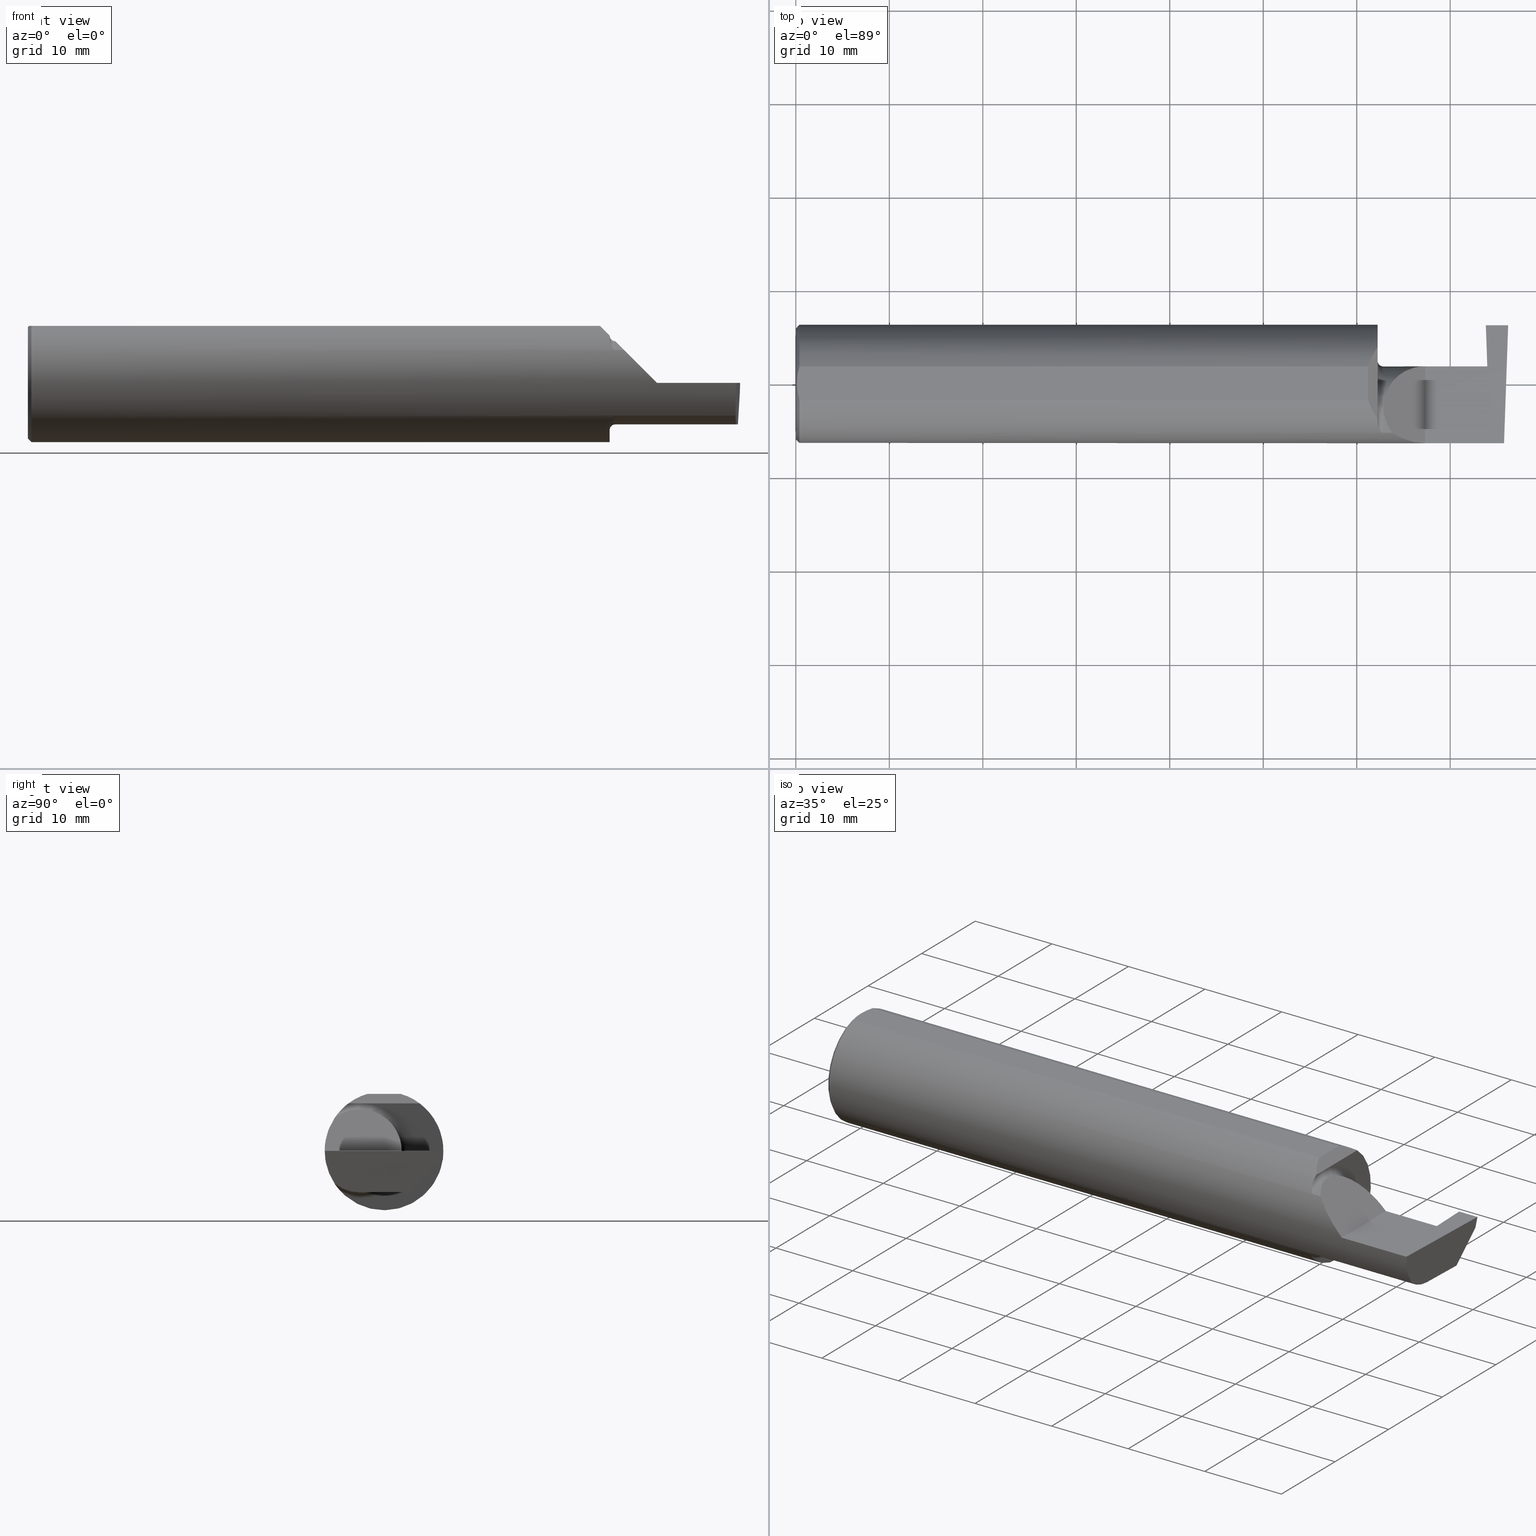
[diagram: canonical four-view strip — front | top / right | iso, engineering-drawing reading convention]
A machine part, canonical four-view strip (front | top / right | iso — engineering-drawing reading convention). The complete STEP part file that produces these views, byte-faithful:
ISO-10303-21;
HEADER;
FILE_DESCRIPTION (( 'STEP AP203' ),
    '1' );
FILE_NAME ('221535-GT093-8.STEP',
    '2024-07-19T22:13:40',
    ( '' ),
    ( '' ),
    'SwSTEP 2.0',
    'SolidWorks 2024',
    '' );
FILE_SCHEMA (( 'CONFIG_CONTROL_DESIGN' ));
ENDSEC;

DATA;
#1 = CARTESIAN_POINT ( 'NONE',  ( 0.01499999999999998036, 0.06997856814768359246, 0.2398500000000000076 ) ) ;
#2 = VECTOR ( 'NONE', #813, 39.37007874015748854 ) ;
#3 = DIRECTION ( 'NONE',  ( 0.06975643500179386225, 0.001215747646129009549, -0.9975633121428941763 ) ) ;
#4 = ORIENTED_EDGE ( 'NONE', *, *, #174, .T. ) ;
#5 = PERSON_AND_ORGANIZATION_ROLE ( 'design_supplier' ) ;
#6 = PRODUCT_DEFINITION_SHAPE ( 'NONE', 'NONE',  #815 ) ;
#7 = DIRECTION ( 'NONE',  ( -0.03489949670249940100, -0.9993908270190957621, 0.000000000000000000 ) ) ;
#8 = ORIENTED_EDGE ( 'NONE', *, *, #626, .F. ) ;
#9 =( BOUNDED_CURVE ( )  B_SPLINE_CURVE ( 3, ( #775, #152, #412, #704 ),
 .UNSPECIFIED., .F., .T. ) 
 B_SPLINE_CURVE_WITH_KNOTS ( ( 4, 4 ),
 ( 4.712388980384689674, 5.298966915116346321 ),
 .UNSPECIFIED. ) 
 CURVE ( )  GEOMETRIC_REPRESENTATION_ITEM ( )  RATIONAL_B_SPLINE_CURVE ( ( 1.000000000000000000, 0.9715321379117538569, 0.9715321379117538569, 1.000000000000000000 ) ) 
 REPRESENTATION_ITEM ( '' )  );
#10 = DIRECTION ( 'NONE',  ( -1.000000000000000000, -0.000000000000000000, -0.000000000000000000 ) ) ;
#11 = DIRECTION ( 'NONE',  ( -0.7071067811865495711, 0.000000000000000000, -0.7071067811865454633 ) ) ;
#12 = ORIENTED_EDGE ( 'NONE', *, *, #57, .F. ) ;
#13 = PERSON_AND_ORGANIZATION ( #793, #819 ) ;
#14 = LINE ( 'NONE', #272, #326 ) ;
#15 = CARTESIAN_POINT ( 'NONE',  ( 2.919013260303944257, 0.07439359513054551176, -0.1998782938404957410 ) ) ;
#16 = ORIENTED_EDGE ( 'NONE', *, *, #86, .T. ) ;
#17 = ADVANCED_FACE ( 'NONE', ( #468 ), #537, .T. ) ;
#18 = CARTESIAN_POINT ( 'NONE',  ( 2.410150000000002013, 0.06997856814768359246, 0.2398500000000000076 ) ) ;
#19 = CARTESIAN_POINT ( 'NONE',  ( 0.01499999999999999944, 3.059780027669661931E-17, 0.2498499999999999888 ) ) ;
#20 = CONICAL_SURFACE ( 'NONE', #634, 0.2498499999999999888, 0.7853981633974485010 ) ;
#21 = ORIENTED_EDGE ( 'NONE', *, *, #387, .F. ) ;
#22 = DATE_AND_TIME ( #394, #465 ) ;
#23 = ADVANCED_FACE ( 'NONE', ( #532 ), #88, .T. ) ;
#24 = LINE ( 'NONE', #460, #388 ) ;
#25 = AXIS2_PLACEMENT_3D ( 'NONE', #440, #563, #315 ) ;
#26 = FACE_OUTER_BOUND ( 'NONE', #607, .T. ) ;
#27 = CARTESIAN_POINT ( 'NONE',  ( 2.990479469570817006, 0.1058243371481679268, -0.1749999999999999889 ) ) ;
#28 = FACE_OUTER_BOUND ( 'NONE', #73, .T. ) ;
#29 = ORIENTED_EDGE ( 'NONE', *, *, #295, .T. ) ;
#30 = LINE ( 'NONE', #475, #569 ) ;
#31 = CARTESIAN_POINT ( 'NONE',  ( 2.475000000000000089, -0.2080850024789291375, -0.1382955322609665805 ) ) ;
#32 = ORIENTED_EDGE ( 'NONE', *, *, #121, .T. ) ;
#33 = ADVANCED_FACE ( 'NONE', ( #83 ), #347, .F. ) ;
#34 =( BOUNDED_CURVE ( )  B_SPLINE_CURVE ( 3, ( #483, #363, #225, #432 ),
 .UNSPECIFIED., .F., .T. ) 
 B_SPLINE_CURVE_WITH_KNOTS ( ( 4, 4 ),
 ( 4.443983221546778495, 4.709965478757016655 ),
 .UNSPECIFIED. ) 
 CURVE ( )  GEOMETRIC_REPRESENTATION_ITEM ( )  RATIONAL_B_SPLINE_CURVE ( ( 1.000000000000000000, 0.9941131374841131185, 0.9941131374841131185, 1.000000000000000000 ) ) 
 REPRESENTATION_ITEM ( '' )  );
#35 = CARTESIAN_POINT ( 'NONE',  ( 2.475000000000000089, -0.1008499999999999674, 0.000000000000000000 ) ) ;
#36 = FACE_OUTER_BOUND ( 'NONE', #49, .T. ) ;
#37 = AXIS2_PLACEMENT_3D ( 'NONE', #503, #684, #118 ) ;
#38 = EDGE_LOOP ( 'NONE', ( #160, #802, #302, #377 ) ) ;
#39 = LINE ( 'NONE', #286, #319 ) ;
#40 = CARTESIAN_POINT ( 'NONE',  ( 2.450000000000001066, -0.1665641037263010105, 0.1863429692936361126 ) ) ;
#41 = VERTEX_POINT ( 'NONE', #406 ) ;
#42 = VECTOR ( 'NONE', #3, 39.37007874015748854 ) ;
#43 = FACE_OUTER_BOUND ( 'NONE', #764, .T. ) ;
#44 = CARTESIAN_POINT ( 'NONE',  ( 2.451849548162864600, -0.1805300287242675161, 0.1728462070311779508 ) ) ;
#45 = ORIENTED_EDGE ( 'NONE', *, *, #685, .T. ) ;
#46 = CARTESIAN_POINT ( 'NONE',  ( 0.000000000000000000, 0.000000000000000000, 0.000000000000000000 ) ) ;
#47 = EDGE_CURVE ( 'NONE', #67, #365, #80, .T. ) ;
#48 = CARTESIAN_POINT ( 'NONE',  ( 2.475000000000001421, -0.1400387324517231857, 0.1750000000000000167 ) ) ;
#49 = EDGE_LOOP ( 'NONE', ( #454, #473, #500, #568, #99, #596 ) ) ;
#50 = CARTESIAN_POINT ( 'NONE',  ( 2.450000000000000178, 0.07414999999999997982, 6.735557395310432655E-17 ) ) ;
#51 = CARTESIAN_POINT ( 'NONE',  ( 2.917053225195028965, 0.1783326768871910384, -0.1750000000000000444 ) ) ;
#52 = ORIENTED_EDGE ( 'NONE', *, *, #375, .F. ) ;
#53 = TOROIDAL_SURFACE ( 'NONE', #130, 0.1999999999999999833, 0.02500000000000007425 ) ;
#54 = CARTESIAN_POINT ( 'NONE',  ( 2.450000000000000178, -0.1616050818046604332, -0.1905487340154980169 ) ) ;
#55 = CARTESIAN_POINT ( 'NONE',  ( 2.981893741990786495, -0.1400387324517231025, -0.1750000000000000167 ) ) ;
#56 = ORIENTED_EDGE ( 'NONE', *, *, #796, .T. ) ;
#57 = EDGE_CURVE ( 'NONE', #318, #558, #600, .T. ) ;
#58 = ADVANCED_FACE ( 'NONE', ( #28 ), #209, .F. ) ;
#59 = CARTESIAN_POINT ( 'NONE',  ( 0.01180609504125294286, -0.05857511741890332468, 0.2398500000000000354 ) ) ;
#60 = AXIS2_PLACEMENT_3D ( 'NONE', #457, #411, #579 ) ;
#61 = CARTESIAN_POINT ( 'NONE',  ( 2.993019781838999194, 0.1785693626775286258, -0.1750000000000000444 ) ) ;
#62 =( BOUNDED_CURVE ( )  B_SPLINE_CURVE ( 3, ( #120, #313, #630, #66 ),
 .UNSPECIFIED., .F., .T. ) 
 B_SPLINE_CURVE_WITH_KNOTS ( ( 4, 4 ),
 ( 0.05713034791898994463, 0.6418805321923491958 ),
 .UNSPECIFIED. ) 
 CURVE ( )  GEOMETRIC_REPRESENTATION_ITEM ( )  RATIONAL_B_SPLINE_CURVE ( ( 1.000000000000000000, 0.9717080070095445166, 0.9717080070095445166, 1.000000000000000000 ) ) 
 REPRESENTATION_ITEM ( '' )  );
#63 = VERTEX_POINT ( 'NONE', #284 ) ;
#64 = VECTOR ( 'NONE', #169, 39.37007874015748143 ) ;
#65 = DIRECTION ( 'NONE',  ( -0.000000000000000000, 1.000000000000000000, 1.224646799147353207E-16 ) ) ;
#66 = CARTESIAN_POINT ( 'NONE',  ( 2.982632426700502215, -0.2498495826666993769, -0.0004566631977452191267 ) ) ;
#67 = VERTEX_POINT ( 'NONE', #714 ) ;
#68 = MANIFOLD_SOLID_BREP ( 'Front Angle', #151 ) ;
#69 = PERSON_AND_ORGANIZATION_ROLE ( 'creator' ) ;
#70 = VECTOR ( 'NONE', #620, 39.37007874015748854 ) ;
#71 = EDGE_CURVE ( 'NONE', #250, #824, #540, .T. ) ;
#72 = DIRECTION ( 'NONE',  ( 0.7071067811865473507, 0.000000000000000000, -0.7071067811865476838 ) ) ;
#73 = EDGE_LOOP ( 'NONE', ( #719, #507, #787, #549 ) ) ;
#74 = CC_DESIGN_DATE_AND_TIME_ASSIGNMENT ( #78, #269, ( #609 ) ) ;
#75 = APPROVAL_STATUS ( 'not_yet_approved' ) ;
#76 = DIRECTION ( 'NONE',  ( -1.000000000000000000, 0.000000000000000000, 1.224646799147351482E-16 ) ) ;
#77 = DIRECTION ( 'NONE',  ( 0.000000000000000000, -0.000000000000000000, 1.000000000000000000 ) ) ;
#78 = DATE_AND_TIME ( #134, #624 ) ;
#79 = CIRCLE ( 'NONE', #429, 0.02500000000000007425 ) ;
#80 = LINE ( 'NONE', #92, #421 ) ;
#81 = PERSON_AND_ORGANIZATION ( #793, #819 ) ;
#82 = CARTESIAN_POINT ( 'NONE',  ( 2.418565128400055997, -0.09882123526961372750, 0.2314348715999460515 ) ) ;
#83 = FACE_OUTER_BOUND ( 'NONE', #385, .T. ) ;
#84 = VERTEX_POINT ( 'NONE', #786 ) ;
#85 = EDGE_CURVE ( 'NONE', #373, #709, #327, .T. ) ;
#86 = EDGE_CURVE ( 'NONE', #674, #723, #222, .T. ) ;
#87 = CARTESIAN_POINT ( 'NONE',  ( 3.000000000000000444, -0.2500000000000000555, 0.000000000000000000 ) ) ;
#88 = PLANE ( 'NONE',  #381 ) ;
#89 = ORIENTED_EDGE ( 'NONE', *, *, #718, .T. ) ;
#90 = APPROVAL_STATUS ( 'not_yet_approved' ) ;
#91 = CARTESIAN_POINT ( 'NONE',  ( 2.650000000000000355, 0.07414999999999997982, 4.286263797015727350E-17 ) ) ;
#92 = CARTESIAN_POINT ( 'NONE',  ( 2.825000000000000178, 0.2348243371481683328, -0.04599999999999999922 ) ) ;
#93 = ORIENTED_EDGE ( 'NONE', *, *, #386, .F. ) ;
#94 = DIRECTION ( 'NONE',  ( 0.000000000000000000, -0.2588190451025216277, -0.9659258262890679791 ) ) ;
#95 = EDGE_CURVE ( 'NONE', #510, #491, #9, .T. ) ;
#96 = CARTESIAN_POINT ( 'NONE',  ( 2.450000000000000178, 0.2741500000000000048, 0.000000000000000000 ) ) ;
#97 = LINE ( 'NONE', #353, #676 ) ;
#98 = DIRECTION ( 'NONE',  ( 0.000000000000000000, -0.7071067811865463515, 0.7071067811865486830 ) ) ;
#99 = ORIENTED_EDGE ( 'NONE', *, *, #652, .T. ) ;
#100 = LINE ( 'NONE', #547, #64 ) ;
#101 = CARTESIAN_POINT ( 'NONE',  ( 2.825000000000000178, 0.2348243371481683328, -0.04599999999999999922 ) ) ;
#102 = AXIS2_PLACEMENT_3D ( 'NONE', #175, #495, #94 ) ;
#103 = LOCAL_TIME ( 15, 13, 40.00000000000000000, #183 ) ;
#104 = ORIENTED_EDGE ( 'NONE', *, *, #542, .T. ) ;
#105 = APPROVAL ( #578, 'UNSPECIFIED' ) ;
#106 = DIRECTION ( 'NONE',  ( 0.000000000000000000, 0.000000000000000000, 1.000000000000000000 ) ) ;
#107 = CARTESIAN_POINT ( 'NONE',  ( 2.462616400345756240, -0.2024684335577105199, 0.1464246884265635318 ) ) ;
#108 = ORIENTED_EDGE ( 'NONE', *, *, #444, .F. ) ;
#109 = AXIS2_PLACEMENT_3D ( 'NONE', #594, #337, #790 ) ;
#110 = ADVANCED_FACE ( 'NONE', ( #648 ), #136, .T. ) ;
#111 = DIRECTION ( 'NONE',  ( 0.000000000000000000, 0.000000000000000000, 1.000000000000000000 ) ) ;
#112 = FACE_OUTER_BOUND ( 'NONE', #227, .T. ) ;
#113 = VERTEX_POINT ( 'NONE', #464 ) ;
#114 = DIRECTION ( 'NONE',  ( 1.000000000000000000, 0.000000000000000000, 0.000000000000000000 ) ) ;
#115 = CARTESIAN_POINT ( 'NONE',  ( 2.825000000000000178, 0.2471500000000000086, -3.306546357697639493E-19 ) ) ;
#116 = ORIENTED_EDGE ( 'NONE', *, *, #205, .F. ) ;
#117 = CC_DESIGN_APPROVAL ( #105, ( #815 ) ) ;
#118 = DIRECTION ( 'NONE',  ( 0.000000000000000000, 0.000000000000000000, 1.000000000000000000 ) ) ;
#119 = EDGE_CURVE ( 'NONE', #627, #408, #520, .T. ) ;
#120 = CARTESIAN_POINT ( 'NONE',  ( 2.980479240051444378, -0.2080850024789291652, -0.1382955322609665250 ) ) ;
#121 = EDGE_CURVE ( 'NONE', #67, #361, #707, .T. ) ;
#122 = EDGE_LOOP ( 'NONE', ( #814, #325, #182, #299, #582, #438, #21 ) ) ;
#123 = VECTOR ( 'NONE', #805, 39.37007874015748143 ) ;
#124 = CARTESIAN_POINT ( 'NONE',  ( 2.431992138630818978, 0.1256992788918499249, 0.2180078613691827649 ) ) ;
#125 = ORIENTED_EDGE ( 'NONE', *, *, #414, .F. ) ;
#126 = LINE ( 'NONE', #50, #212 ) ;
#127 = AXIS2_PLACEMENT_3D ( 'NONE', #721, #771, #150 ) ;
#128 = DIRECTION ( 'NONE',  ( 0.02616100201822768243, -0.0009135623211515309658, 0.9996573249755575929 ) ) ;
#129 = ORIENTED_EDGE ( 'NONE', *, *, #220, .T. ) ;
#130 = AXIS2_PLACEMENT_3D ( 'NONE', #35, #539, #106 ) ;
#131 = APPROVAL_DATE_TIME ( #575, #379 ) ;
#132 = LINE ( 'NONE', #61, #692 ) ;
#133 = EDGE_LOOP ( 'NONE', ( #29, #818, #742, #32 ) ) ;
#134 = CALENDAR_DATE ( 2024, 19, 7 ) ;
#135 = CARTESIAN_POINT ( 'NONE',  ( 2.917029432995152050, -0.1008500000000000091, -0.1749999999999999889 ) ) ;
#136 = PLANE ( 'NONE',  #484 ) ;
#137 = CALENDAR_DATE ( 2024, 19, 7 ) ;
#138 = DIRECTION ( 'NONE',  ( -1.000000000000000000, -0.000000000000000000, -0.000000000000000000 ) ) ;
#139 = AXIS2_PLACEMENT_3D ( 'NONE', #202, #656, #660 ) ;
#140 = DIRECTION ( 'NONE',  ( -0.03487823687206274836, -0.001217974870087560951, 0.9993908270190957621 ) ) ;
#141 = EDGE_LOOP ( 'NONE', ( #521, #645, #262, #285, #738 ) ) ;
#142 = MECHANICAL_CONTEXT ( 'NONE', #316, 'mechanical' ) ;
#143 = CIRCLE ( 'NONE', #263, 0.2348499999999999754 ) ;
#144 = CARTESIAN_POINT ( 'NONE',  ( 2.908037492458068307, -2.828026118470033268, -0.04973274877547772393 ) ) ;
#145 = ADVANCED_FACE ( 'NONE', ( #26 ), #146, .T. ) ;
#146 = CYLINDRICAL_SURFACE ( 'NONE', #522, 0.1749999999999999889 ) ;
#147 = EDGE_CURVE ( 'NONE', #491, #417, #320, .T. ) ;
#148 = ORIENTED_EDGE ( 'NONE', *, *, #414, .T. ) ;
#149 = APPROVAL_DATE_TIME ( #22, #105 ) ;
#150 = DIRECTION ( 'NONE',  ( 0.000000000000000000, 0.000000000000000000, 1.000000000000000000 ) ) ;
#151 = CLOSED_SHELL ( 'NONE', ( #735, #589, #822, #17, #423, #33, #58, #469, #608, #110, #698, #23, #206, #446, #145, #257, #197, #613, #665, #244, #770, #479, #556 ) ) ;
#152 = CARTESIAN_POINT ( 'NONE',  ( 2.600434159100403875, -0.2498499999999999055, 0.04956584089959691769 ) ) ;
#153 = ORIENTED_EDGE ( 'NONE', *, *, #762, .F. ) ;
#154 = CARTESIAN_POINT ( 'NONE',  ( 2.650000000000000355, -0.2498499999999999610, 4.286263797015727350E-17 ) ) ;
#155 = DIRECTION ( 'NONE',  ( 1.000000000000000000, 0.000000000000000000, 0.000000000000000000 ) ) ;
#156 = EDGE_LOOP ( 'NONE', ( #357, #769, #577, #8, #694, #173, #746, #12, #541, #658, #516, #794, #732, #670, #592, #281 ) ) ;
#157 = AXIS2_PLACEMENT_3D ( 'NONE', #452, #619, #699 ) ;
#158 = CARTESIAN_POINT ( 'NONE',  ( 2.458176740666626170, -0.1972027065478075825, -0.1535263573771911971 ) ) ;
#159 = CARTESIAN_POINT ( 'NONE',  ( 2.450000000000000178, 0.1497498664440119198, 0.2000000000000015099 ) ) ;
#160 = ORIENTED_EDGE ( 'NONE', *, *, #47, .T. ) ;
#161 = DIRECTION ( 'NONE',  ( -1.000000000000000000, -0.000000000000000000, -0.000000000000000000 ) ) ;
#162 = LINE ( 'NONE', #167, #70 ) ;
#163 = AXIS2_PLACEMENT_3D ( 'NONE', #581, #717, #416 ) ;
#164 = ORIENTED_EDGE ( 'NONE', *, *, #349, .F. ) ;
#165 = PLANE ( 'NONE',  #102 ) ;
#166 = CC_DESIGN_PERSON_AND_ORGANIZATION_ASSIGNMENT ( #81, #69, ( #755 ) ) ;
#167 = CARTESIAN_POINT ( 'NONE',  ( 2.998041052908566595, 0.2295359730721147906, -0.05128836407605352060 ) ) ;
#168 = ORIENTED_EDGE ( 'NONE', *, *, #422, .T. ) ;
#169 = DIRECTION ( 'NONE',  ( 1.000000000000000000, 0.000000000000000000, 0.000000000000000000 ) ) ;
#170 = DIRECTION ( 'NONE',  ( 0.000000000000000000, -1.000000000000000000, 2.446352684939717727E-16 ) ) ;
#171 = AXIS2_PLACEMENT_3D ( 'NONE', #816, #303, #322 ) ;
#172 = EDGE_CURVE ( 'NONE', #413, #728, #672, .T. ) ;
#173 = ORIENTED_EDGE ( 'NONE', *, *, #334, .F. ) ;
#174 = EDGE_CURVE ( 'NONE', #200, #63, #737, .T. ) ;
#175 = CARTESIAN_POINT ( 'NONE',  ( 2.825000000000000178, 0.2471500000000000086, -3.306546357697639493E-19 ) ) ;
#176 = CARTESIAN_POINT ( 'NONE',  ( 2.982644377562602589, -0.2498499999999999610, 1.813681607540488003E-17 ) ) ;
#177 = VECTOR ( 'NONE', #345, 39.37007874015748854 ) ;
#178 = EDGE_LOOP ( 'NONE', ( #447, #502, #767 ) ) ;
#179 = CIRCLE ( 'NONE', #616, 0.2498499999999999888 ) ;
#180 = FACE_OUTER_BOUND ( 'NONE', #428, .T. ) ;
#181 = DIRECTION ( 'NONE',  ( 0.000000000000000000, 0.000000000000000000, 1.000000000000000000 ) ) ;
#182 = ORIENTED_EDGE ( 'NONE', *, *, #232, .F. ) ;
#183 = COORDINATED_UNIVERSAL_TIME_OFFSET ( 8, 0, .BEHIND. ) ;
#184 = CARTESIAN_POINT ( 'NONE',  ( 0.000000000000000000, 0.000000000000000000, -0.2348499999999999754 ) ) ;
#185 = CARTESIAN_POINT ( 'NONE',  ( 0.01499999999999999944, 0.000000000000000000, -0.2498499999999999888 ) ) ;
#186 = ORIENTED_EDGE ( 'NONE', *, *, #397, .F. ) ;
#187 = AXIS2_PLACEMENT_3D ( 'NONE', #389, #623, #632 ) ;
#188 = LINE ( 'NONE', #449, #290 ) ;
#189 = CARTESIAN_POINT ( 'NONE',  ( 2.450000000000000178, -0.1497498664440119476, 0.2000000000000015099 ) ) ;
#190 = ORIENTED_EDGE ( 'NONE', *, *, #820, .F. ) ;
#191 = CARTESIAN_POINT ( 'NONE',  ( 0.004999999999999471013, 5.665694022114171174E-17, 0.2398500000000000076 ) ) ;
#192 = CARTESIAN_POINT ( 'NONE',  ( 2.917047045968828467, 0.07436332225211046698, -0.1750383420824915270 ) ) ;
#193 = ORIENTED_EDGE ( 'NONE', *, *, #529, .F. ) ;
#194 = CARTESIAN_POINT ( 'NONE',  ( 2.650000000000000355, 0.07414999999999997982, 4.286263797015727350E-17 ) ) ;
#195 = LINE ( 'NONE', #192, #42 ) ;
#196 = ORIENTED_EDGE ( 'NONE', *, *, #551, .F. ) ;
#197 = ADVANCED_FACE ( 'NONE', ( #238 ), #496, .F. ) ;
#198 = DIRECTION ( 'NONE',  ( 1.000000000000000000, 0.000000000000000000, 0.000000000000000000 ) ) ;
#199 = PLANE ( 'NONE',  #739 ) ;
#200 = VERTEX_POINT ( 'NONE', #176 ) ;
#201 = VECTOR ( 'NONE', #801, 39.37007874015748854 ) ;
#202 = CARTESIAN_POINT ( 'NONE',  ( 0.000000000000000000, 0.000000000000000000, 0.000000000000000000 ) ) ;
#203 = DIRECTION ( 'NONE',  ( 0.000000000000000000, -1.000000000000000000, 0.000000000000000000 ) ) ;
#204 =( CONVERSION_BASED_UNIT ( 'INCH', #339 ) LENGTH_UNIT ( ) NAMED_UNIT ( #393 ) );
#205 = EDGE_CURVE ( 'NONE', #391, #243, #433, .T. ) ;
#206 = ADVANCED_FACE ( 'NONE', ( #112 ), #364, .T. ) ;
#207 = CARTESIAN_POINT ( 'NONE',  ( 2.906000000000000139, -0.1008499999999999674, 0.000000000000000000 ) ) ;
#208 = AXIS2_PLACEMENT_3D ( 'NONE', #207, #138, #590 ) ;
#209 = PLANE ( 'NONE',  #788 ) ;
#210 = ORIENTED_EDGE ( 'NONE', *, *, #675, .F. ) ;
#211 = DATE_TIME_ROLE ( 'creation_date' ) ;
#212 = VECTOR ( 'NONE', #114, 39.37007874015748143 ) ;
#213 = DIRECTION ( 'NONE',  ( 0.000000000000000000, -1.000000000000000000, 0.000000000000000000 ) ) ;
#214 = DIRECTION ( 'NONE',  ( 1.000000000000000000, 0.000000000000000000, 0.000000000000000000 ) ) ;
#215 = ORIENTED_EDGE ( 'NONE', *, *, #599, .T. ) ;
#216 = CARTESIAN_POINT ( 'NONE',  ( 0.000000000000000000, 0.000000000000000000, 0.000000000000000000 ) ) ;
#217 = FACE_OUTER_BOUND ( 'NONE', #178, .T. ) ;
#218 = CARTESIAN_POINT ( 'NONE',  ( 2.450000000000000178, 0.2741500000000000048, 0.000000000000000000 ) ) ;
#219 = EDGE_LOOP ( 'NONE', ( #369, #641, #210, #396, #477, #683, #148, #662, #751, #153 ) ) ;
#220 = EDGE_CURVE ( 'NONE', #782, #84, #270, .T. ) ;
#221 = CARTESIAN_POINT ( 'NONE',  ( 2.473318040126430528, -0.2080850024789293318, -0.1382955322609664139 ) ) ;
#222 = LINE ( 'NONE', #19, #629 ) ;
#223 = ORIENTED_EDGE ( 'NONE', *, *, #86, .F. ) ;
#224 =( GEOMETRIC_REPRESENTATION_CONTEXT ( 3 ) GLOBAL_UNCERTAINTY_ASSIGNED_CONTEXT ( ( #383 ) ) GLOBAL_UNIT_ASSIGNED_CONTEXT ( ( #204, #462, #517 ) ) REPRESENTATION_CONTEXT ( 'NONE', 'WORKASPACE' ) );
#225 = CARTESIAN_POINT ( 'NONE',  ( 2.906689495973013404, 0.07413112468343002748, -0.01577237022675150729 ) ) ;
#226 = CARTESIAN_POINT ( 'NONE',  ( 2.908037492458067863, 0.07420629955631044550, -0.04619574797784884584 ) ) ;
#227 = EDGE_LOOP ( 'NONE', ( #601, #482, #240 ) ) ;
#228 = DIRECTION ( 'NONE',  ( 0.9987827668610290699, 0.03485699000042884188, 0.03489949669461413218 ) ) ;
#229 = VECTOR ( 'NONE', #633, 39.37007874015748143 ) ;
#230 = VERTEX_POINT ( 'NONE', #31 ) ;
#231 = DIRECTION ( 'NONE',  ( 0.000000000000000000, 0.000000000000000000, 1.000000000000000000 ) ) ;
#232 = EDGE_CURVE ( 'NONE', #365, #631, #162, .T. ) ;
#233 = DIRECTION ( 'NONE',  ( -1.000000000000000000, -0.000000000000000000, -0.000000000000000000 ) ) ;
#234 = VERTEX_POINT ( 'NONE', #359 ) ;
#235 = APPROVAL_DATE_TIME ( #810, #493 ) ;
#236 = AXIS2_PLACEMENT_3D ( 'NONE', #87, #463, #76 ) ;
#237 = CARTESIAN_POINT ( 'NONE',  ( 0.01499999999999999944, 0.000000000000000000, 0.000000000000000000 ) ) ;
#238 = FACE_OUTER_BOUND ( 'NONE', #38, .T. ) ;
#239 = CC_DESIGN_APPROVAL ( #379, ( #755 ) ) ;
#240 = ORIENTED_EDGE ( 'NONE', *, *, #119, .T. ) ;
#241 = CARTESIAN_POINT ( 'NONE',  ( 2.982632426700502215, -0.2498495826666993769, -0.0004566631977452191267 ) ) ;
#242 = DIRECTION ( 'NONE',  ( 1.000000000000000000, 0.000000000000000000, 0.000000000000000000 ) ) ;
#243 = VERTEX_POINT ( 'NONE', #490 ) ;
#244 = ADVANCED_FACE ( 'NONE', ( #561 ), #419, .F. ) ;
#245 = DIRECTION ( 'NONE',  ( 0.000000000000000000, 0.000000000000000000, 1.000000000000000000 ) ) ;
#246 = VERTEX_POINT ( 'NONE', #476 ) ;
#247 = SHAPE_DEFINITION_REPRESENTATION ( #6, #713 ) ;
#248 = CARTESIAN_POINT ( 'NONE',  ( 2.450000000000000178, -0.1616050818046604332, 0.1905487340154980169 ) ) ;
#249 = CARTESIAN_POINT ( 'NONE',  ( 2.450000000000000178, 0.1497498664440119198, 0.2000000000000015099 ) ) ;
#250 = VERTEX_POINT ( 'NONE', #606 ) ;
#251 = CONICAL_SURFACE ( 'NONE', #25, 0.2498499999999999888, 0.7853981633974485010 ) ;
#252 = CARTESIAN_POINT ( 'NONE',  ( 2.450000000000000178, -0.1616050818046604332, -0.1905487340154980169 ) ) ;
#253 = CARTESIAN_POINT ( 'NONE',  ( 2.998364291748493393, 0.2348243371481683328, -0.04599999999999999922 ) ) ;
#254 = VERTEX_POINT ( 'NONE', #159 ) ;
#255 = VECTOR ( 'NONE', #72, 39.37007874015748143 ) ;
#256 = DIRECTION ( 'NONE',  ( 0.000000000000000000, 0.000000000000000000, 1.000000000000000000 ) ) ;
#257 = ADVANCED_FACE ( 'NONE', ( #36 ), #603, .F. ) ;
#258 = DIRECTION ( 'NONE',  ( 0.000000000000000000, 0.000000000000000000, -1.000000000000000000 ) ) ;
#259 = EDGE_LOOP ( 'NONE', ( #190, #16, #554, #215, #164 ) ) ;
#260 = APPROVAL_ROLE ( '' ) ;
#261 = CARTESIAN_POINT ( 'NONE',  ( 2.913564601548836563, 0.04629714416892562884, -0.1252712066320194051 ) ) ;
#262 = ORIENTED_EDGE ( 'NONE', *, *, #724, .F. ) ;
#263 = AXIS2_PLACEMENT_3D ( 'NONE', #46, #560, #807 ) ;
#264 = APPROVAL_PERSON_ORGANIZATION ( #773, #493, #310 ) ;
#265 = CARTESIAN_POINT ( 'NONE',  ( 2.917036419112081891, -0.01887343476265498227, -0.1750000000000000444 ) ) ;
#266 = DIRECTION ( 'NONE',  ( 1.000000000000000000, 0.000000000000000000, -0.000000000000000000 ) ) ;
#267 = EDGE_CURVE ( 'NONE', #41, #230, #485, .T. ) ;
#268 = EDGE_CURVE ( 'NONE', #728, #723, #628, .T. ) ;
#269 = DATE_TIME_ROLE ( 'classification_date' ) ;
#270 = B_SPLINE_CURVE_WITH_KNOTS ( 'NONE', 3,
 ( #430, #40, #301, #44, #548, #367, #731, #107, #557, #297, #792, #481, #553, #424 ),
 .UNSPECIFIED., .F., .F.,
 ( 4, 2, 2, 2, 2, 2, 4 ),
 ( 0.0003834465838148173595, 0.0008781406165086686789, 0.001372834649202519944, 0.001867528681896371209, 0.002114875698243302155, 0.002238549206416767193, 0.002362222714590232232 ),
 .UNSPECIFIED. ) ;
#271 = VECTOR ( 'NONE', #203, 39.37007874015748143 ) ;
#272 = CARTESIAN_POINT ( 'NONE',  ( 2.410150000000002013, -0.2498499999999999888, 0.2398500000000000076 ) ) ;
#273 = ORIENTED_EDGE ( 'NONE', *, *, #444, .T. ) ;
#274 = CARTESIAN_POINT ( 'NONE',  ( 2.431992138630818978, -0.1256992788918499804, 0.2180078613691826817 ) ) ;
#275 = CARTESIAN_POINT ( 'NONE',  ( 2.650000000000000355, -0.2500000000000000555, 4.286263797015727350E-17 ) ) ;
#276 = EDGE_LOOP ( 'NONE', ( #486, #116, #125, #534, #664, #809 ) ) ;
#277 = PERSON_AND_ORGANIZATION ( #793, #819 ) ;
#278 = LOCAL_TIME ( 15, 13, 40.00000000000000000, #643 ) ;
#279 = FACE_OUTER_BOUND ( 'NONE', #497, .T. ) ;
#280 = CARTESIAN_POINT ( 'NONE',  ( 2.450000000000000178, -0.1008499999999999674, 0.000000000000000000 ) ) ;
#281 = ORIENTED_EDGE ( 'NONE', *, *, #387, .T. ) ;
#282 = FACE_OUTER_BOUND ( 'NONE', #306, .T. ) ;
#283 = AXIS2_PLACEMENT_3D ( 'NONE', #333, #399, #722 ) ;
#284 = CARTESIAN_POINT ( 'NONE',  ( 3.000000000000000444, 0.2471499999999999531, -7.549931466865102584E-16 ) ) ;
#285 = ORIENTED_EDGE ( 'NONE', *, *, #71, .T. ) ;
#286 = CARTESIAN_POINT ( 'NONE',  ( 4.499279347985559139E-32, -0.2498499999999999610, 3.673940397442053459E-16 ) ) ;
#287 = CARTESIAN_POINT ( 'NONE',  ( 3.000000000000000444, 0.1783256080881261973, -0.1750000000000000444 ) ) ;
#288 = EDGE_LOOP ( 'NONE', ( #330, #4, #380, #104, #657, #343, #52 ) ) ;
#289 = EDGE_CURVE ( 'NONE', #243, #314, #195, .T. ) ;
#290 = VECTOR ( 'NONE', #436, 39.37007874015748854 ) ;
#291 = CARTESIAN_POINT ( 'NONE',  ( 0.000000000000000000, 0.000000000000000000, 0.000000000000000000 ) ) ;
#292 = CARTESIAN_POINT ( 'NONE',  ( 2.690500000000000114, -0.2080850024789291652, -0.1382955322609665250 ) ) ;
#293 = VERTEX_POINT ( 'NONE', #573 ) ;
#294 = EDGE_CURVE ( 'NONE', #41, #293, #354, .T. ) ;
#295 = EDGE_CURVE ( 'NONE', #361, #63, #329, .T. ) ;
#296 = CARTESIAN_POINT ( 'NONE',  ( 2.907835463590749736, 0.2377170136668100842, -0.04310732348135826175 ) ) ;
#297 = CARTESIAN_POINT ( 'NONE',  ( 2.467647060162629025, -0.2062109266231184901, 0.1410799729252286139 ) ) ;
#298 = AXIS2_PLACEMENT_3D ( 'NONE', #808, #228, #741 ) ;
#299 = ORIENTED_EDGE ( 'NONE', *, *, #455, .F. ) ;
#300 = CARTESIAN_POINT ( 'NONE',  ( 2.450000000000000178, -0.1008499999999999674, 0.2000000000000015099 ) ) ;
#301 = CARTESIAN_POINT ( 'NONE',  ( 2.450367168219774516, -0.1713400252854603567, 0.1819601557798505298 ) ) ;
#302 = ORIENTED_EDGE ( 'NONE', *, *, #642, .F. ) ;
#303 = DIRECTION ( 'NONE',  ( 0.9975640529689512315, -8.501330957465243296E-05, 0.06975638319821841904 ) ) ;
#304 = DIRECTION ( 'NONE',  ( 1.000000000000000000, 0.000000000000000000, 0.000000000000000000 ) ) ;
#305 = EDGE_CURVE ( 'NONE', #254, #627, #384, .T. ) ;
#306 = EDGE_LOOP ( 'NONE', ( #458, #621 ) ) ;
#307 = FACE_OUTER_BOUND ( 'NONE', #701, .T. ) ;
#308 = CARTESIAN_POINT ( 'NONE',  ( 0.004999999999999748569, 0.01185123536186986730, 0.2398500000000000354 ) ) ;
#309 = ORIENTED_EDGE ( 'NONE', *, *, #736, .T. ) ;
#310 = APPROVAL_ROLE ( '' ) ;
#311 = VECTOR ( 'NONE', #509, 39.37007874015748143 ) ;
#312 = DIRECTION ( 'NONE',  ( -1.000000000000000000, -0.000000000000000000, -0.000000000000000000 ) ) ;
#313 = CARTESIAN_POINT ( 'NONE',  ( 2.980602402804240381, -0.2354324170447328890, -0.09714751587400699551 ) ) ;
#314 = VERTEX_POINT ( 'NONE', #450 ) ;
#315 = DIRECTION ( 'NONE',  ( 0.000000000000000000, 0.000000000000000000, -1.000000000000000000 ) ) ;
#316 = APPLICATION_CONTEXT ( 'configuration controlled 3d designs of mechanical parts and assemblies' ) ;
#317 = DIRECTION ( 'NONE',  ( 1.000000000000000000, 0.000000000000000000, 0.000000000000000000 ) ) ;
#318 = VERTEX_POINT ( 'NONE', #700 ) ;
#319 = VECTOR ( 'NONE', #605, 39.37007874015748143 ) ;
#320 =( BOUNDED_CURVE ( )  B_SPLINE_CURVE ( 3, ( #427, #356, #48, #745 ),
 .UNSPECIFIED., .F., .T. ) 
 B_SPLINE_CURVE_WITH_KNOTS ( ( 4, 4 ),
 ( 5.623622464215678463, 6.283185307179586232 ),
 .UNSPECIFIED. ) 
 CURVE ( )  GEOMETRIC_REPRESENTATION_ITEM ( )  RATIONAL_B_SPLINE_CURVE ( ( 1.000000000000000000, 0.9640754331822828371, 0.9640754331822828371, 1.000000000000000000 ) ) 
 REPRESENTATION_ITEM ( '' )  );
#321 = EDGE_CURVE ( 'NONE', #631, #293, #132, .T. ) ;
#322 = DIRECTION ( 'NONE',  ( 0.06975638345029228082, 0.000000000000000000, -0.9975640565737800003 ) ) ;
#323 = EDGE_CURVE ( 'NONE', #806, #200, #395, .T. ) ;
#324 = CARTESIAN_POINT ( 'NONE',  ( 0.004999999999999471013, 5.665694022114171174E-17, 0.2398500000000000076 ) ) ;
#325 = ORIENTED_EDGE ( 'NONE', *, *, #321, .F. ) ;
#326 = VECTOR ( 'NONE', #213, 39.37007874015748143 ) ;
#327 = CIRCLE ( 'NONE', #109, 0.1999999999999999833 ) ;
#328 = DATE_AND_TIME ( #137, #278 ) ;
#329 = LINE ( 'NONE', #115, #229 ) ;
#330 = ORIENTED_EDGE ( 'NONE', *, *, #654, .F. ) ;
#331 = B_SPLINE_CURVE_WITH_KNOTS ( 'NONE', 3,
 ( #552, #221, #804, #420, #680, #598, #726, #158, #480, #730, #668, #54 ),
 .UNSPECIFIED., .F., .F.,
 ( 4, 2, 2, 2, 2, 4 ),
 ( 1.964491429112497443E-07, 0.0001260981470478309680, 0.0002519998449527506546, 0.0005038032407626181087, 0.001007410032382352692, 0.002014623615621821857 ),
 .UNSPECIFIED. ) ;
#332 = PLANE ( 'NONE',  #236 ) ;
#333 = CARTESIAN_POINT ( 'NONE',  ( 0.000000000000000000, 0.000000000000000000, 0.000000000000000000 ) ) ;
#334 = EDGE_CURVE ( 'NONE', #408, #782, #179, .T. ) ;
#335 = AXIS2_PLACEMENT_3D ( 'NONE', #610, #161, #111 ) ;
#336 = CARTESIAN_POINT ( 'NONE',  ( 0.01499999999999999944, 0.000000000000000000, 0.000000000000000000 ) ) ;
#337 = DIRECTION ( 'NONE',  ( -1.000000000000000000, -0.000000000000000000, -0.000000000000000000 ) ) ;
#338 = ORIENTED_EDGE ( 'NONE', *, *, #795, .T. ) ;
#339 = LENGTH_MEASURE_WITH_UNIT ( LENGTH_MEASURE( 0.02539999999999999897 ), #535 );
#340 = AXIS2_PLACEMENT_3D ( 'NONE', #640, #242, #499 ) ;
#341 = CARTESIAN_POINT ( 'NONE',  ( 2.994767799596354418, 0.2473327124642303587, -0.1999314649951115241 ) ) ;
#342 = DIRECTION ( 'NONE',  ( -0.7071067811865454633, 0.000000000000000000, 0.7071067811865495711 ) ) ;
#343 = ORIENTED_EDGE ( 'NONE', *, *, #757, .F. ) ;
#344 = PERSON_AND_ORGANIZATION_ROLE ( 'design_owner' ) ;
#345 = DIRECTION ( 'NONE',  ( -1.860109918781714014E-16, 0.9999992573649232330, 0.001218716374663524060 ) ) ;
#346 = CIRCLE ( 'NONE', #208, 0.1749999999999999889 ) ;
#347 = PLANE ( 'NONE',  #163 ) ;
#348 = VERTEX_POINT ( 'NONE', #442 ) ;
#349 = EDGE_CURVE ( 'NONE', #798, #246, #376, .T. ) ;
#350 = DIRECTION ( 'NONE',  ( 0.000000000000000000, 0.000000000000000000, 1.000000000000000000 ) ) ;
#351 = DIRECTION ( 'NONE',  ( 1.000000000000000000, -0.000000000000000000, -0.000000000000000000 ) ) ;
#352 = VERTEX_POINT ( 'NONE', #693 ) ;
#353 = CARTESIAN_POINT ( 'NONE',  ( 3.000000000000000444, 0.1058243371481678713, -0.1750000000000000167 ) ) ;
#354 =( BOUNDED_CURVE ( )  B_SPLINE_CURVE ( 3, ( #696, #445, #55, #823 ),
 .UNSPECIFIED., .F., .T. ) 
 B_SPLINE_CURVE_WITH_KNOTS ( ( 4, 4 ),
 ( 0.2675252011803429530, 0.9270880441442505004 ),
 .UNSPECIFIED. ) 
 CURVE ( )  GEOMETRIC_REPRESENTATION_ITEM ( )  RATIONAL_B_SPLINE_CURVE ( ( 1.000000000000000000, 0.9640754331822828371, 0.9640754331822828371, 1.000000000000000000 ) ) 
 REPRESENTATION_ITEM ( '' )  );
#355 = CC_DESIGN_PERSON_AND_ORGANIZATION_ASSIGNMENT ( #404, #344, ( #708 ) ) ;
#356 = CARTESIAN_POINT ( 'NONE',  ( 2.487690731615568307, -0.1771157075472510889, 0.1623092683844330197 ) ) ;
#357 = ORIENTED_EDGE ( 'NONE', *, *, #323, .T. ) ;
#358 = PLANE ( 'NONE',  #580 ) ;
#359 = CARTESIAN_POINT ( 'NONE',  ( 2.917047045968828911, 0.1058243371481679407, -0.1749999999999999889 ) ) ;
#360 = CIRCLE ( 'NONE', #139, 0.2348499999999999754 ) ;
#361 = VERTEX_POINT ( 'NONE', #570 ) ;
#362 = EDGE_CURVE ( 'NONE', #709, #254, #448, .T. ) ;
#363 = CARTESIAN_POINT ( 'NONE',  ( 2.907372681961405636, 0.07204909126152565790, -0.03119400421533637113 ) ) ;
#364 = PLANE ( 'NONE',  #587 ) ;
#365 = VERTEX_POINT ( 'NONE', #253 ) ;
#366 = DIRECTION ( 'NONE',  ( 1.000000000000000000, 0.000000000000000000, 0.000000000000000000 ) ) ;
#367 = CARTESIAN_POINT ( 'NONE',  ( 2.456159563508733878, -0.1933019864360850659, 0.1584298865564828795 ) ) ;
#368 = AXIS2_PLACEMENT_3D ( 'NONE', #101, #98, #682 ) ;
#369 = ORIENTED_EDGE ( 'NONE', *, *, #294, .F. ) ;
#370 = EDGE_CURVE ( 'NONE', #246, #318, #799, .T. ) ;
#371 = CARTESIAN_POINT ( 'NONE',  ( 0.004999999999999737293, -0.01183939972798750233, 0.2398500000000000631 ) ) ;
#372 = DIRECTION ( 'NONE',  ( 0.000000000000000000, 0.000000000000000000, -1.000000000000000000 ) ) ;
#373 = VERTEX_POINT ( 'NONE', #564 ) ;
#374 = LINE ( 'NONE', #821, #403 ) ;
#375 = EDGE_CURVE ( 'NONE', #510, #574, #437, .T. ) ;
#376 = LINE ( 'NONE', #185, #255 ) ;
#377 = ORIENTED_EDGE ( 'NONE', *, *, #588, .T. ) ;
#378 = CARTESIAN_POINT ( 'NONE',  ( 2.475000000000000977, -0.1008499999999999674, 0.1749999999999999889 ) ) ;
#379 = APPROVAL ( #75, 'UNSPECIFIED' ) ;
#380 = ORIENTED_EDGE ( 'NONE', *, *, #295, .F. ) ;
#381 = AXIS2_PLACEMENT_3D ( 'NONE', #218, #155, #653 ) ;
#382 = CARTESIAN_POINT ( 'NONE',  ( 0.009274236576542584445, -0.04692405468904851940, 0.2398500000000000076 ) ) ;
#383 = UNCERTAINTY_MEASURE_WITH_UNIT (LENGTH_MEASURE( 1.000000000000000082E-05 ), #204, 'distance_accuracy_value', 'NONE');
#384 = LINE ( 'NONE', #766, #538 ) ;
#385 = EDGE_LOOP ( 'NONE', ( #545, #186, #715, #776, #687 ) ) ;
#386 = EDGE_CURVE ( 'NONE', #754, #314, #758, .T. ) ;
#387 = EDGE_CURVE ( 'NONE', #41, #806, #62, .T. ) ;
#388 = VECTOR ( 'NONE', #711, 39.37007874015748854 ) ;
#389 = CARTESIAN_POINT ( 'NONE',  ( 2.475000000000000089, -0.1008499999999999674, 0.000000000000000000 ) ) ;
#390 = CARTESIAN_POINT ( 'NONE',  ( 2.450000000000000178, 0.000000000000000000, 0.000000000000000000 ) ) ;
#391 = VERTEX_POINT ( 'NONE', #753 ) ;
#392 = AXIS2_PLACEMENT_3D ( 'NONE', #543, #791, #426 ) ;
#393 = DIMENSIONAL_EXPONENTS ( 1.000000000000000000, 0.000000000000000000, 0.000000000000000000, 0.000000000000000000, 0.000000000000000000, 0.000000000000000000, 0.000000000000000000 ) ;
#394 = CALENDAR_DATE ( 2024, 19, 7 ) ;
#395 = LINE ( 'NONE', #644, #511 ) ;
#396 = ORIENTED_EDGE ( 'NONE', *, *, #718, .F. ) ;
#397 = EDGE_CURVE ( 'NONE', #413, #254, #492, .T. ) ;
#398 = CARTESIAN_POINT ( 'NONE',  ( 2.923443515640288037, -0.2526717807899120372, 9.375465352509560635E-18 ) ) ;
#399 = DIRECTION ( 'NONE',  ( -1.000000000000000000, -0.000000000000000000, -0.000000000000000000 ) ) ;
#400 = PERSON_AND_ORGANIZATION ( #793, #819 ) ;
#401 = PLANE ( 'NONE',  #784 ) ;
#402 = CARTESIAN_POINT ( 'NONE',  ( 2.905852002393191302, 0.2480453007885640715, 0.003341308030977583211 ) ) ;
#403 = VECTOR ( 'NONE', #508, 39.37007874015748143 ) ;
#404 = PERSON_AND_ORGANIZATION ( #793, #819 ) ;
#405 = DIRECTION ( 'NONE',  ( 1.000000000000000000, 0.000000000000000000, 0.000000000000000000 ) ) ;
#406 = CARTESIAN_POINT ( 'NONE',  ( 2.980479240051444378, -0.2080850024789291652, -0.1382955322609665250 ) ) ;
#407 = APPLICATION_CONTEXT ( 'configuration controlled 3d designs of mechanical parts and assemblies' ) ;
#408 = VERTEX_POINT ( 'NONE', #189 ) ;
#409 = PERSON_AND_ORGANIZATION ( #793, #819 ) ;
#410 = AXIS2_PLACEMENT_3D ( 'NONE', #287, #678, #170 ) ;
#411 = DIRECTION ( 'NONE',  ( -1.000000000000000000, -0.000000000000000000, -0.000000000000000000 ) ) ;
#412 = CARTESIAN_POINT ( 'NONE',  ( 2.552984868485333347, -0.2355204011147992438, 0.09701513151466735485 ) ) ;
#413 = VERTEX_POINT ( 'NONE', #18 ) ;
#414 = EDGE_CURVE ( 'NONE', #348, #391, #346, .T. ) ;
#415 = DIRECTION ( 'NONE',  ( 0.03487823687994805882, -0.9993915692020550745, -4.266149715957534195E-18 ) ) ;
#416 = DIRECTION ( 'NONE',  ( -0.7071067811865454633, 0.000000000000000000, 0.7071067811865495711 ) ) ;
#417 = VERTEX_POINT ( 'NONE', #531 ) ;
#418 = DIRECTION ( 'NONE',  ( -1.000000000000000000, -0.000000000000000000, -0.000000000000000000 ) ) ;
#419 = PLANE ( 'NONE',  #298 ) ;
#420 = CARTESIAN_POINT ( 'NONE',  ( 2.468863362722769406, -0.2068301641248772305, -0.1401678546132358316 ) ) ;
#421 = VECTOR ( 'NONE', #351, 39.37007874015748143 ) ;
#422 = EDGE_CURVE ( 'NONE', #754, #113, #439, .T. ) ;
#423 = ADVANCED_FACE ( 'NONE', ( #706 ), #332, .F. ) ;
#424 = CARTESIAN_POINT ( 'NONE',  ( 2.475000000000000089, -0.2080850024789292485, 0.1382955322609664972 ) ) ;
#425 = ORIENTED_EDGE ( 'NONE', *, *, #747, .T. ) ;
#426 = DIRECTION ( 'NONE',  ( 0.000000000000000000, 0.001218716374663524277, -0.9999992573649232330 ) ) ;
#427 = CARTESIAN_POINT ( 'NONE',  ( 2.511704467739034552, -0.2080850024789292485, 0.1382955322609664139 ) ) ;
#428 = EDGE_LOOP ( 'NONE', ( #591, #618, #129, #273 ) ) ;
#429 = AXIS2_PLACEMENT_3D ( 'NONE', #512, #65, #256 ) ;
#430 = CARTESIAN_POINT ( 'NONE',  ( 2.450000000000000178, -0.1616050818046604332, 0.1905487340154980169 ) ) ;
#431 = ORIENTED_EDGE ( 'NONE', *, *, #289, .T. ) ;
#432 = CARTESIAN_POINT ( 'NONE',  ( 2.906000000000000139, 0.07414987299205413884, -0.0002108382441793291845 ) ) ;
#433 = LINE ( 'NONE', #226, #201 ) ;
#434 = VECTOR ( 'NONE', #525, 39.37007874015748143 ) ;
#435 = ORIENTED_EDGE ( 'NONE', *, *, #172, .T. ) ;
#436 = DIRECTION ( 'NONE',  ( -0.03487823687994805882, 0.9993915692020550745, -2.444309580554223547E-16 ) ) ;
#437 = LINE ( 'NONE', #690, #311 ) ;
#438 = ORIENTED_EDGE ( 'NONE', *, *, #323, .F. ) ;
#439 =( BOUNDED_CURVE ( )  B_SPLINE_CURVE ( 3, ( #135, #265, #261, #593 ),
 .UNSPECIFIED., .F., .T. ) 
 B_SPLINE_CURVE_WITH_KNOTS ( ( 4, 4 ),
 ( 3.140373936913444908, 4.443983221546777607 ),
 .UNSPECIFIED. ) 
 CURVE ( )  GEOMETRIC_REPRESENTATION_ITEM ( )  RATIONAL_B_SPLINE_CURVE ( ( 1.000000000000000000, 0.8633269052189371795, 0.8633269052189371795, 1.000000000000000000 ) ) 
 REPRESENTATION_ITEM ( '' )  );
#440 = CARTESIAN_POINT ( 'NONE',  ( 0.01499999999999999944, 0.000000000000000000, 0.000000000000000000 ) ) ;
#441 = CIRCLE ( 'NONE', #780, 0.1749999999999999889 ) ;
#442 = CARTESIAN_POINT ( 'NONE',  ( 2.906000000000000139, 0.07414999999999999369, 6.735575451811503370E-17 ) ) ;
#443 = CARTESIAN_POINT ( 'NONE',  ( 0.005880636388018714231, -0.02358947477502553597, 0.2398500000000000354 ) ) ;
#444 = EDGE_CURVE ( 'NONE', #84, #417, #527, .T. ) ;
#445 = CARTESIAN_POINT ( 'NONE',  ( 2.980931506555613453, -0.1771157075472509779, -0.1623092683844330475 ) ) ;
#446 = ADVANCED_FACE ( 'NONE', ( #663 ), #783, .T. ) ;
#447 = ORIENTED_EDGE ( 'NONE', *, *, #673, .T. ) ;
#448 = CIRCLE ( 'NONE', #340, 0.2498499999999999888 ) ;
#449 = CARTESIAN_POINT ( 'NONE',  ( 2.914620779571722053, 0.1753459184784766089, -0.1750000000000000444 ) ) ;
#450 = CARTESIAN_POINT ( 'NONE',  ( 2.917044364828741632, 0.07436327552395199936, -0.1750000000000000167 ) ) ;
#451 = ORIENTED_EDGE ( 'NONE', *, *, #85, .F. ) ;
#452 = CARTESIAN_POINT ( 'NONE',  ( 2.475000000000000089, -0.1008499999999999674, 0.1999999999999999833 ) ) ;
#453 = DIRECTION ( 'NONE',  ( 0.000000000000000000, -1.000000000000000000, 0.000000000000000000 ) ) ;
#454 = ORIENTED_EDGE ( 'NONE', *, *, #642, .T. ) ;
#455 = EDGE_CURVE ( 'NONE', #63, #365, #24, .T. ) ;
#456 = SECURITY_CLASSIFICATION_LEVEL ( 'unclassified' ) ;
#457 = CARTESIAN_POINT ( 'NONE',  ( 2.450000000000000178, -0.1008499999999999674, 0.000000000000000000 ) ) ;
#458 = ORIENTED_EDGE ( 'NONE', *, *, #529, .T. ) ;
#459 = APPLICATION_PROTOCOL_DEFINITION ( 'international standard', 'config_control_design', 1994, #407 ) ;
#460 = CARTESIAN_POINT ( 'NONE',  ( 2.999793790066964672, 0.2455961323656265238, -0.005799112959718751882 ) ) ;
#461 = CARTESIAN_POINT ( 'NONE',  ( 0.000000000000000000, -0.06997856814768359246, 0.2398500000000000076 ) ) ;
#462 =( NAMED_UNIT ( * ) PLANE_ANGLE_UNIT ( ) SI_UNIT ( $, .RADIAN. ) );
#463 = DIRECTION ( 'NONE',  ( -1.224646799147351482E-16, 0.000000000000000000, -1.000000000000000000 ) ) ;
#464 = CARTESIAN_POINT ( 'NONE',  ( 2.908037492458067863, 0.06794054266098323303, -0.04620338416404774079 ) ) ;
#465 = LOCAL_TIME ( 15, 13, 40.00000000000000000, #646 ) ;
#466 = ORIENTED_EDGE ( 'NONE', *, *, #57, .T. ) ;
#467 = CALENDAR_DATE ( 2024, 19, 7 ) ;
#468 = FACE_OUTER_BOUND ( 'NONE', #156, .T. ) ;
#469 = ADVANCED_FACE ( 'NONE', ( #279 ), #20, .T. ) ;
#470 = ORIENTED_EDGE ( 'NONE', *, *, #626, .T. ) ;
#471 = APPLICATION_PROTOCOL_DEFINITION ( 'international standard', 'config_control_design', 1994, #316 ) ;
#472 = CARTESIAN_POINT ( 'NONE',  ( 2.511704467739034552, -0.2080850024789292485, 0.1382955322609664139 ) ) ;
#473 = ORIENTED_EDGE ( 'NONE', *, *, #321, .T. ) ;
#474 = EDGE_LOOP ( 'NONE', ( #759, #679, #425, #697 ) ) ;
#475 = CARTESIAN_POINT ( 'NONE',  ( 3.000000000000000444, 0.07436327552395202711, -0.1750000000000000167 ) ) ;
#476 = CARTESIAN_POINT ( 'NONE',  ( 0.01499999999999999944, 0.000000000000000000, -0.2498499999999999888 ) ) ;
#477 = ORIENTED_EDGE ( 'NONE', *, *, #785, .T. ) ;
#478 = LOCAL_TIME ( 15, 13, 40.00000000000000000, #705 ) ;
#479 = ADVANCED_FACE ( 'NONE', ( #217 ), #199, .F. ) ;
#480 = CARTESIAN_POINT ( 'NONE',  ( 2.456147634408388125, -0.1932733126899462417, -0.1584637047788195474 ) ) ;
#481 = CARTESIAN_POINT ( 'NONE',  ( 2.471718393013768278, -0.2077830475237243124, 0.1387513848711933728 ) ) ;
#482 = ORIENTED_EDGE ( 'NONE', *, *, #504, .T. ) ;
#483 = CARTESIAN_POINT ( 'NONE',  ( 2.908037492458067863, 0.06794054266098323303, -0.04620338416404774079 ) ) ;
#484 = AXIS2_PLACEMENT_3D ( 'NONE', #661, #77, #266 ) ;
#485 = LINE ( 'NONE', #292, #667 ) ;
#486 = ORIENTED_EDGE ( 'NONE', *, *, #289, .F. ) ;
#487 = DIRECTION ( 'NONE',  ( -0.04932528479609452066, 0.7062460676987120101, 0.7062460676987096786 ) ) ;
#488 = CC_DESIGN_PERSON_AND_ORGANIZATION_ASSIGNMENT ( #13, #5, ( #755 ) ) ;
#489 = CIRCLE ( 'NONE', #127, 0.1999999999999999833 ) ;
#490 = CARTESIAN_POINT ( 'NONE',  ( 2.908037492458067863, 0.07420629955631045938, -0.04619574797784884584 ) ) ;
#491 = VERTEX_POINT ( 'NONE', #472 ) ;
#492 =( BOUNDED_CURVE ( )  B_SPLINE_CURVE ( 3, ( #817, #763, #124, #249 ),
 .UNSPECIFIED., .F., .T. ) 
 B_SPLINE_CURVE_WITH_KNOTS ( ( 4, 4 ),
 ( 0.2838798623474212968, 0.6427002007837403497 ),
 .UNSPECIFIED. ) 
 CURVE ( )  GEOMETRIC_REPRESENTATION_ITEM ( )  RATIONAL_B_SPLINE_CURVE ( ( 1.000000000000000000, 0.9892994125303244957, 0.9892994125303244957, 1.000000000000000000 ) ) 
 REPRESENTATION_ITEM ( '' )  );
#493 = APPROVAL ( #90, 'UNSPECIFIED' ) ;
#494 = APPROVAL_PERSON_ORGANIZATION ( #277, #379, #655 ) ;
#495 = DIRECTION ( 'NONE',  ( 0.000000000000000000, -0.9659258262890680902, 0.2588190451025216832 ) ) ;
#496 = PLANE ( 'NONE',  #368 ) ;
#497 = EDGE_LOOP ( 'NONE', ( #223, #193, #571, #562, #604 ) ) ;
#498 = CARTESIAN_POINT ( 'NONE',  ( 0.01499999999999999944, -0.06997856814768359246, 0.2398500000000000076 ) ) ;
#499 = DIRECTION ( 'NONE',  ( 0.000000000000000000, 0.000000000000000000, -1.000000000000000000 ) ) ;
#500 = ORIENTED_EDGE ( 'NONE', *, *, #762, .T. ) ;
#501 = CARTESIAN_POINT ( 'NONE',  ( 0.01499999999999999944, 0.000000000000000000, 0.000000000000000000 ) ) ;
#502 = ORIENTED_EDGE ( 'NONE', *, *, #205, .T. ) ;
#503 = CARTESIAN_POINT ( 'NONE',  ( 2.450000000000000178, -0.1008499999999999674, 0.000000000000000000 ) ) ;
#504 = EDGE_CURVE ( 'NONE', #782, #627, #489, .T. ) ;
#505 = CIRCLE ( 'NONE', #157, 0.02500000000000007425 ) ;
#506 = CARTESIAN_POINT ( 'NONE',  ( 0.009312860630924749139, 0.04712480857212033442, 0.2398500000000000354 ) ) ;
#507 = ORIENTED_EDGE ( 'NONE', *, *, #147, .F. ) ;
#508 = DIRECTION ( 'NONE',  ( -1.000000000000000000, -0.000000000000000000, -0.000000000000000000 ) ) ;
#509 = DIRECTION ( 'NONE',  ( -0.000000000000000000, 1.000000000000000000, -0.000000000000000000 ) ) ;
#510 = VERTEX_POINT ( 'NONE', #154 ) ;
#511 = VECTOR ( 'NONE', #128, 39.37007874015748854 ) ;
#512 = CARTESIAN_POINT ( 'NONE',  ( 2.475000000000000089, -0.1008499999999999536, -0.1999999999999999833 ) ) ;
#513 = CARTESIAN_POINT ( 'NONE',  ( 0.005899890343961325216, 0.02378560009989248020, 0.2398500000000000076 ) ) ;
#514 = ORIENTED_EDGE ( 'NONE', *, *, #268, .T. ) ;
#515 = CARTESIAN_POINT ( 'NONE',  ( 2.410150000000002013, -0.06997856814768374512, 0.2398500000000000076 ) ) ;
#516 = ORIENTED_EDGE ( 'NONE', *, *, #172, .F. ) ;
#517 =( NAMED_UNIT ( * ) SI_UNIT ( $, .STERADIAN. ) SOLID_ANGLE_UNIT ( ) );
#518 =( BOUNDED_CURVE ( )  B_SPLINE_CURVE ( 3, ( #647, #274, #82, #515 ),
 .UNSPECIFIED., .F., .F. ) 
 B_SPLINE_CURVE_WITH_KNOTS ( ( 4, 4 ),
 ( 5.640485106395845882, 5.999305444832164547 ),
 .UNSPECIFIED. ) 
 CURVE ( )  GEOMETRIC_REPRESENTATION_ITEM ( )  RATIONAL_B_SPLINE_CURVE ( ( 1.000000000000000000, 0.9892994125303244957, 0.9892994125303244957, 1.000000000000000000 ) ) 
 REPRESENTATION_ITEM ( '' )  );
#519 = DIRECTION ( 'NONE',  ( 0.9990198516376387339, -5.394573431701115448E-05, 0.04426435500228372705 ) ) ;
#520 = LINE ( 'NONE', #772, #271 ) ;
#521 = ORIENTED_EDGE ( 'NONE', *, *, #121, .F. ) ;
#522 = AXIS2_PLACEMENT_3D ( 'NONE', #280, #617, #544 ) ;
#523 = CC_DESIGN_DATE_AND_TIME_ASSIGNMENT ( #328, #211, ( #815 ) ) ;
#524 = FACE_OUTER_BOUND ( 'NONE', #122, .T. ) ;
#525 = DIRECTION ( 'NONE',  ( -0.04274495231316566973, 0.2585824888546562894, 0.9650429863531866381 ) ) ;
#526 = ORIENTED_EDGE ( 'NONE', *, *, #147, .T. ) ;
#527 = CIRCLE ( 'NONE', #803, 0.1749999999999999889 ) ;
#528 = DIRECTION ( 'NONE',  ( 0.000000000000000000, 0.000000000000000000, 1.000000000000000000 ) ) ;
#529 = EDGE_CURVE ( 'NONE', #798, #674, #360, .T. ) ;
#530 = EDGE_CURVE ( 'NONE', #408, #558, #518, .T. ) ;
#531 = CARTESIAN_POINT ( 'NONE',  ( 2.475000000000000977, -0.1008499999999999674, 0.1749999999999999889 ) ) ;
#532 = FACE_OUTER_BOUND ( 'NONE', #474, .T. ) ;
#533 = APPROVAL_PERSON_ORGANIZATION ( #583, #105, #260 ) ;
#534 = ORIENTED_EDGE ( 'NONE', *, *, #614, .F. ) ;
#535 =( LENGTH_UNIT ( ) NAMED_UNIT ( * ) SI_UNIT ( $, .METRE. ) );
#536 = CARTESIAN_POINT ( 'NONE',  ( 2.475000000000000089, -0.1008499999999999674, 0.000000000000000000 ) ) ;
#537 = CYLINDRICAL_SURFACE ( 'NONE', #283, 0.2498499999999999888 ) ;
#538 = VECTOR ( 'NONE', #453, 39.37007874015748143 ) ;
#539 = DIRECTION ( 'NONE',  ( -1.000000000000000000, -0.000000000000000000, -0.000000000000000000 ) ) ;
#540 = LINE ( 'NONE', #15, #681 ) ;
#541 = ORIENTED_EDGE ( 'NONE', *, *, #370, .F. ) ;
#542 = EDGE_CURVE ( 'NONE', #361, #824, #768, .T. ) ;
#543 = CARTESIAN_POINT ( 'NONE',  ( 2.919013260303944257, 0.07439359513054551176, -0.1998782938404957410 ) ) ;
#544 = DIRECTION ( 'NONE',  ( 0.000000000000000000, 0.000000000000000000, 1.000000000000000000 ) ) ;
#545 = ORIENTED_EDGE ( 'NONE', *, *, #305, .F. ) ;
#546 = CIRCLE ( 'NONE', #335, 0.1749999999999999889 ) ;
#547 = CARTESIAN_POINT ( 'NONE',  ( 2.690500000000000114, -0.2080850024789291652, 0.1382955322609665250 ) ) ;
#548 = CARTESIAN_POINT ( 'NONE',  ( 2.452968662030529323, -0.1849684355203380370, 0.1680843977756266150 ) ) ;
#549 = ORIENTED_EDGE ( 'NONE', *, *, #375, .T. ) ;
#550 =( BOUNDED_CURVE ( )  B_SPLINE_CURVE ( 3, ( #378, #756, #765, #194 ),
 .UNSPECIFIED., .F., .T. ) 
 B_SPLINE_CURVE_WITH_KNOTS ( ( 4, 4 ),
 ( 0.000000000000000000, 1.570796326794896558 ),
 .UNSPECIFIED. ) 
 CURVE ( )  GEOMETRIC_REPRESENTATION_ITEM ( )  RATIONAL_B_SPLINE_CURVE ( ( 1.000000000000000000, 0.8047378541243649375, 0.8047378541243649375, 1.000000000000000000 ) ) 
 REPRESENTATION_ITEM ( '' )  );
#551 = EDGE_CURVE ( 'NONE', #413, #558, #14, .T. ) ;
#552 = CARTESIAN_POINT ( 'NONE',  ( 2.475000000000000089, -0.2080850024789291375, -0.1382955322609665805 ) ) ;
#553 = CARTESIAN_POINT ( 'NONE',  ( 2.473329956043142985, -0.2080850024798593101, 0.1382955322595671721 ) ) ;
#554 = ORIENTED_EDGE ( 'NONE', *, *, #268, .F. ) ;
#555 = FACE_OUTER_BOUND ( 'NONE', #276, .T. ) ;
#556 = ADVANCED_FACE ( 'NONE', ( #524 ), #401, .F. ) ;
#557 = CARTESIAN_POINT ( 'NONE',  ( 2.464343523383979218, -0.2041337200786086103, 0.1440846171672507392 ) ) ;
#558 = VERTEX_POINT ( 'NONE', #774 ) ;
#559 = CALENDAR_DATE ( 2024, 19, 7 ) ;
#560 = DIRECTION ( 'NONE',  ( -1.000000000000000000, -0.000000000000000000, -0.000000000000000000 ) ) ;
#561 = FACE_OUTER_BOUND ( 'NONE', #141, .T. ) ;
#562 = ORIENTED_EDGE ( 'NONE', *, *, #370, .T. ) ;
#563 = DIRECTION ( 'NONE',  ( 1.000000000000000000, 0.000000000000000000, 0.000000000000000000 ) ) ;
#564 = CARTESIAN_POINT ( 'NONE',  ( 2.450000000000000178, -0.1008499999999999536, -0.1999999999999999833 ) ) ;
#565 = ORIENTED_EDGE ( 'NONE', *, *, #566, .T. ) ;
#566 = EDGE_CURVE ( 'NONE', #113, #243, #779, .T. ) ;
#567 = DIRECTION ( 'NONE',  ( -1.000000000000000000, -0.000000000000000000, -0.000000000000000000 ) ) ;
#568 = ORIENTED_EDGE ( 'NONE', *, *, #386, .T. ) ;
#569 = VECTOR ( 'NONE', #615, 39.37007874015748143 ) ;
#570 = CARTESIAN_POINT ( 'NONE',  ( 2.906000000000000139, 0.2471500000000000086, -3.306546357697639493E-19 ) ) ;
#571 = ORIENTED_EDGE ( 'NONE', *, *, #349, .T. ) ;
#572 = CARTESIAN_POINT ( 'NONE',  ( 2.917029432995152050, -0.1008500000000000091, -0.1749999999999999889 ) ) ;
#573 = CARTESIAN_POINT ( 'NONE',  ( 2.983262242683407006, -0.1008499999999999674, -0.1749999999999999889 ) ) ;
#574 = VERTEX_POINT ( 'NONE', #91 ) ;
#575 = DATE_AND_TIME ( #467, #478 ) ;
#576 = DIRECTION ( 'NONE',  ( -0.03489949670249939406, -0.9993908270190957621, 2.445004146800611929E-16 ) ) ;
#577 = ORIENTED_EDGE ( 'NONE', *, *, #95, .T. ) ;
#578 = APPROVAL_STATUS ( 'not_yet_approved' ) ;
#579 = DIRECTION ( 'NONE',  ( 0.000000000000000000, 0.000000000000000000, 1.000000000000000000 ) ) ;
#580 = AXIS2_PLACEMENT_3D ( 'NONE', #291, #734, #666 ) ;
#581 = CARTESIAN_POINT ( 'NONE',  ( 2.650000000000000355, -0.2500000000000000555, 4.286263797015727350E-17 ) ) ;
#582 = ORIENTED_EDGE ( 'NONE', *, *, #174, .F. ) ;
#583 = PERSON_AND_ORGANIZATION ( #793, #819 ) ;
#584 = DIRECTION ( 'NONE',  ( 0.04426435506669150477, 0.000000000000000000, -0.9990198530912836050 ) ) ;
#585 = ORIENTED_EDGE ( 'NONE', *, *, #747, .F. ) ;
#586 = EDGE_LOOP ( 'NONE', ( #451, #309, #612, #45 ) ) ;
#587 = AXIS2_PLACEMENT_3D ( 'NONE', #96, #304, #372 ) ;
#588 = EDGE_CURVE ( 'NONE', #234, #67, #671, .T. ) ;
#589 = ADVANCED_FACE ( 'NONE', ( #43 ), #53, .F. ) ;
#590 = DIRECTION ( 'NONE',  ( 0.000000000000000000, 0.000000000000000000, 1.000000000000000000 ) ) ;
#591 = ORIENTED_EDGE ( 'NONE', *, *, #795, .F. ) ;
#592 = ORIENTED_EDGE ( 'NONE', *, *, #267, .F. ) ;
#593 = CARTESIAN_POINT ( 'NONE',  ( 2.908037492458067863, 0.06794054266098323303, -0.04620338416404774079 ) ) ;
#594 = CARTESIAN_POINT ( 'NONE',  ( 2.450000000000000178, -0.1008499999999999674, 0.000000000000000000 ) ) ;
#595 = CIRCLE ( 'NONE', #37, 0.1999999999999999833 ) ;
#596 = ORIENTED_EDGE ( 'NONE', *, *, #724, .T. ) ;
#597 = CC_DESIGN_APPROVAL ( #493, ( #609 ) ) ;
#598 = CARTESIAN_POINT ( 'NONE',  ( 2.464302603425052141, -0.2041009206016216881, -0.1441313430770034543 ) ) ;
#599 = EDGE_CURVE ( 'NONE', #728, #246, #639, .T. ) ;
#600 = LINE ( 'NONE', #461, #749 ) ;
#601 = ORIENTED_EDGE ( 'NONE', *, *, #334, .T. ) ;
#602 = FACE_OUTER_BOUND ( 'NONE', #133, .T. ) ;
#603 = PLANE ( 'NONE',  #410 ) ;
#604 = ORIENTED_EDGE ( 'NONE', *, *, #796, .F. ) ;
#605 = DIRECTION ( 'NONE',  ( -1.000000000000000000, -0.000000000000000000, -0.000000000000000000 ) ) ;
#606 = CARTESIAN_POINT ( 'NONE',  ( 2.918145020370094045, 0.07436327552395201324, -0.1750000000000000167 ) ) ;
#607 = EDGE_LOOP ( 'NONE', ( #470, #526, #108 ) ) ;
#608 = ADVANCED_FACE ( 'NONE', ( #282 ), #358, .F. ) ;
#609 = SECURITY_CLASSIFICATION ( '', '', #456 ) ;
#610 = CARTESIAN_POINT ( 'NONE',  ( 2.475000000000000089, -0.1008499999999999674, 0.000000000000000000 ) ) ;
#611 = CARTESIAN_POINT ( 'NONE',  ( 2.982660284539054629, -0.2493944837933358694, 2.123502703737254632E-18 ) ) ;
#612 = ORIENTED_EDGE ( 'NONE', *, *, #675, .T. ) ;
#613 = ADVANCED_FACE ( 'NONE', ( #602 ), #165, .F. ) ;
#614 = EDGE_CURVE ( 'NONE', #824, #348, #789, .T. ) ;
#615 = DIRECTION ( 'NONE',  ( 1.000000000000000000, 1.870497743706911121E-16, -4.575890381050107109E-32 ) ) ;
#616 = AXIS2_PLACEMENT_3D ( 'NONE', #390, #317, #258 ) ;
#617 = DIRECTION ( 'NONE',  ( -1.000000000000000000, -0.000000000000000000, -0.000000000000000000 ) ) ;
#618 = ORIENTED_EDGE ( 'NONE', *, *, #504, .F. ) ;
#619 = DIRECTION ( 'NONE',  ( 0.000000000000000000, -1.000000000000000000, 0.000000000000000000 ) ) ;
#620 = DIRECTION ( 'NONE',  ( -0.04317993108637931121, -0.7064472710512011977, -0.7064472710511988662 ) ) ;
#621 = ORIENTED_EDGE ( 'NONE', *, *, #820, .T. ) ;
#622 = TOROIDAL_SURFACE ( 'NONE', #712, 0.1999999999999999833, 0.02500000000000007425 ) ;
#623 = DIRECTION ( 'NONE',  ( -1.000000000000000000, -0.000000000000000000, -0.000000000000000000 ) ) ;
#624 = LOCAL_TIME ( 15, 13, 40.00000000000000000, #702 ) ;
#625 = CARTESIAN_POINT ( 'NONE',  ( 0.01181966702888962925, 0.05862357455657477012, 0.2398500000000000631 ) ) ;
#626 = EDGE_CURVE ( 'NONE', #84, #491, #100, .T. ) ;
#627 = VERTEX_POINT ( 'NONE', #300 ) ;
#628 = B_SPLINE_CURVE_WITH_KNOTS ( 'NONE', 3,
 ( #686, #625, #506, #513, #308, #324 ),
 .UNSPECIFIED., .F., .F.,
 ( 4, 2, 4 ),
 ( 0.006064768674679246394, 0.006954995897674293680, 0.007845223120669340966 ),
 .UNSPECIFIED. ) ;
#629 = VECTOR ( 'NONE', #781, 39.37007874015748143 ) ;
#630 = CARTESIAN_POINT ( 'NONE',  ( 2.981341028891338230, -0.2497592792593404665, -0.04986346618387292595 ) ) ;
#631 = VERTEX_POINT ( 'NONE', #27 ) ;
#632 = DIRECTION ( 'NONE',  ( 0.000000000000000000, 0.000000000000000000, 1.000000000000000000 ) ) ;
#633 = DIRECTION ( 'NONE',  ( 1.000000000000000000, -0.000000000000000000, -0.000000000000000000 ) ) ;
#634 = AXIS2_PLACEMENT_3D ( 'NONE', #336, #405, #703 ) ;
#635 = EDGE_LOOP ( 'NONE', ( #196, #435, #514, #56, #466 ) ) ;
#636 = CC_DESIGN_PERSON_AND_ORGANIZATION_ASSIGNMENT ( #400, #649, ( #609 ) ) ;
#637 = CARTESIAN_POINT ( 'NONE',  ( 2.475000000000000089, -0.1008499999999999674, 0.000000000000000000 ) ) ;
#638 = DESIGN_CONTEXT ( 'detailed design', #407, 'design' ) ;
#639 = CIRCLE ( 'NONE', #688, 0.2498499999999999888 ) ;
#640 = CARTESIAN_POINT ( 'NONE',  ( 2.450000000000000178, 0.000000000000000000, 0.000000000000000000 ) ) ;
#641 = ORIENTED_EDGE ( 'NONE', *, *, #267, .T. ) ;
#642 = EDGE_CURVE ( 'NONE', #234, #631, #97, .T. ) ;
#643 = COORDINATED_UNIVERSAL_TIME_OFFSET ( 8, 0, .BEHIND. ) ;
#644 = CARTESIAN_POINT ( 'NONE',  ( 2.977412177158956563, -0.2496672875357696664, -0.1999314649951114686 ) ) ;
#645 = ORIENTED_EDGE ( 'NONE', *, *, #588, .F. ) ;
#646 = COORDINATED_UNIVERSAL_TIME_OFFSET ( 8, 0, .BEHIND. ) ;
#647 = CARTESIAN_POINT ( 'NONE',  ( 2.450000000000000178, -0.1497498664440119476, 0.2000000000000015099 ) ) ;
#648 = FACE_OUTER_BOUND ( 'NONE', #635, .T. ) ;
#649 = PERSON_AND_ORGANIZATION_ROLE ( 'classification_officer' ) ;
#650 = DIRECTION ( 'NONE',  ( -0.9990483607430196145, 0.03488753751661385211, 0.02617694830785935456 ) ) ;
#651 = AXIS2_PLACEMENT_3D ( 'NONE', #216, #528, #198 ) ;
#652 = EDGE_CURVE ( 'NONE', #314, #250, #30, .T. ) ;
#653 = DIRECTION ( 'NONE',  ( 0.000000000000000000, 0.000000000000000000, -1.000000000000000000 ) ) ;
#654 = EDGE_CURVE ( 'NONE', #200, #510, #39, .T. ) ;
#655 = APPROVAL_ROLE ( '' ) ;
#656 = DIRECTION ( 'NONE',  ( -1.000000000000000000, -0.000000000000000000, -0.000000000000000000 ) ) ;
#657 = ORIENTED_EDGE ( 'NONE', *, *, #614, .T. ) ;
#658 = ORIENTED_EDGE ( 'NONE', *, *, #599, .F. ) ;
#659 = PERSON_AND_ORGANIZATION_ROLE ( 'creator' ) ;
#660 = DIRECTION ( 'NONE',  ( 0.000000000000000000, 0.000000000000000000, 1.000000000000000000 ) ) ;
#661 = CARTESIAN_POINT ( 'NONE',  ( 3.000000000000000444, -0.2498499999999999888, 0.2398500000000000076 ) ) ;
#662 = ORIENTED_EDGE ( 'NONE', *, *, #673, .F. ) ;
#663 = FACE_OUTER_BOUND ( 'NONE', #219, .T. ) ;
#664 = ORIENTED_EDGE ( 'NONE', *, *, #71, .F. ) ;
#665 = ADVANCED_FACE ( 'NONE', ( #555 ), #744, .F. ) ;
#666 = DIRECTION ( 'NONE',  ( 0.000000000000000000, 0.000000000000000000, -1.000000000000000000 ) ) ;
#667 = VECTOR ( 'NONE', #797, 39.37007874015748143 ) ;
#668 = CARTESIAN_POINT ( 'NONE',  ( 2.450000000000000178, -0.1716188362992554783, -0.1820560320165480195 ) ) ;
#669 = CARTESIAN_POINT ( 'NONE',  ( 0.000000000000000000, 0.06997856814768359246, 0.2398500000000000076 ) ) ;
#670 = ORIENTED_EDGE ( 'NONE', *, *, #685, .F. ) ;
#671 = LINE ( 'NONE', #296, #811 ) ;
#672 = LINE ( 'NONE', #669, #733 ) ;
#673 = EDGE_CURVE ( 'NONE', #113, #391, #34, .T. ) ;
#674 = VERTEX_POINT ( 'NONE', #800 ) ;
#675 = EDGE_CURVE ( 'NONE', #352, #230, #546, .T. ) ;
#676 = VECTOR ( 'NONE', #366, 39.37007874015748143 ) ;
#677 = DIRECTION ( 'NONE',  ( -1.000000000000000000, -1.871990241922592797E-16, 1.224646799147351482E-16 ) ) ;
#678 = DIRECTION ( 'NONE',  ( -0.000000000000000000, 2.446352684939717727E-16, 1.000000000000000000 ) ) ;
#679 = ORIENTED_EDGE ( 'NONE', *, *, #305, .T. ) ;
#680 = CARTESIAN_POINT ( 'NONE',  ( 2.467611663768900510, -0.2061921161193833452, -0.1411075319999372246 ) ) ;
#681 = VECTOR ( 'NONE', #140, 39.37007874015748854 ) ;
#682 = DIRECTION ( 'NONE',  ( 0.000000000000000000, -0.7071067811865486830, -0.7071067811865463515 ) ) ;
#683 = ORIENTED_EDGE ( 'NONE', *, *, #757, .T. ) ;
#684 = DIRECTION ( 'NONE',  ( -1.000000000000000000, -0.000000000000000000, -0.000000000000000000 ) ) ;
#685 = EDGE_CURVE ( 'NONE', #230, #709, #331, .T. ) ;
#686 = CARTESIAN_POINT ( 'NONE',  ( 0.01499999999999998036, 0.06997856814768359246, 0.2398500000000000076 ) ) ;
#687 = ORIENTED_EDGE ( 'NONE', *, *, #119, .F. ) ;
#688 = AXIS2_PLACEMENT_3D ( 'NONE', #237, #418, #231 ) ;
#689 = FACE_OUTER_BOUND ( 'NONE', #586, .T. ) ;
#690 = CARTESIAN_POINT ( 'NONE',  ( 2.650000000000000355, -0.2500000000000000555, 4.286263797015727350E-17 ) ) ;
#691 = ORIENTED_EDGE ( 'NONE', *, *, #736, .F. ) ;
#692 = VECTOR ( 'NONE', #576, 39.37007874015748854 ) ;
#693 = CARTESIAN_POINT ( 'NONE',  ( 2.475000000000000089, -0.1008499999999999536, -0.1749999999999999889 ) ) ;
#694 = ORIENTED_EDGE ( 'NONE', *, *, #220, .F. ) ;
#695 = CARTESIAN_POINT ( 'NONE',  ( 2.475000000000000089, -0.1008499999999999674, 0.000000000000000000 ) ) ;
#696 = CARTESIAN_POINT ( 'NONE',  ( 2.980479240051444378, -0.2080850024789291652, -0.1382955322609665250 ) ) ;
#697 = ORIENTED_EDGE ( 'NONE', *, *, #85, .T. ) ;
#698 = ADVANCED_FACE ( 'NONE', ( #180 ), #743, .F. ) ;
#699 = DIRECTION ( 'NONE',  ( 0.000000000000000000, 0.000000000000000000, -1.000000000000000000 ) ) ;
#700 = CARTESIAN_POINT ( 'NONE',  ( 0.01499999999999999944, -0.06997856814768359246, 0.2398500000000000076 ) ) ;
#701 = EDGE_LOOP ( 'NONE', ( #168, #565, #431, #93 ) ) ;
#702 = COORDINATED_UNIVERSAL_TIME_OFFSET ( 8, 0, .BEHIND. ) ;
#703 = DIRECTION ( 'NONE',  ( 0.000000000000000000, 0.000000000000000000, -1.000000000000000000 ) ) ;
#704 = CARTESIAN_POINT ( 'NONE',  ( 2.511704467739034552, -0.2080850024789292485, 0.1382955322609664139 ) ) ;
#705 = COORDINATED_UNIVERSAL_TIME_OFFSET ( 8, 0, .BEHIND. ) ;
#706 = FACE_OUTER_BOUND ( 'NONE', #288, .T. ) ;
#707 = LINE ( 'NONE', #402, #434 ) ;
#708 = PRODUCT ( '221535-GT093-8', '221535-GT093-8', '', ( #142 ) ) ;
#709 = VERTEX_POINT ( 'NONE', #252 ) ;
#710 = VECTOR ( 'NONE', #415, 39.37007874015748854 ) ;
#711 = DIRECTION ( 'NONE',  ( -0.03432699337968036363, -0.2586665114180216052, -0.9653565628286482347 ) ) ;
#712 = AXIS2_PLACEMENT_3D ( 'NONE', #637, #567, #812 ) ;
#713 = ADVANCED_BREP_SHAPE_REPRESENTATION ( '221535-GT093-8', ( #68, #651 ), #224 ) ;
#714 = CARTESIAN_POINT ( 'NONE',  ( 2.908037492458067863, 0.2348243371481683328, -0.04599999999999999922 ) ) ;
#715 = ORIENTED_EDGE ( 'NONE', *, *, #551, .T. ) ;
#716 = CARTESIAN_POINT ( 'NONE',  ( 2.908037492458068307, -2.828026118470033268, -0.04973274877547772393 ) ) ;
#717 = DIRECTION ( 'NONE',  ( -0.7071067811865495711, 0.000000000000000000, -0.7071067811865454633 ) ) ;
#718 = EDGE_CURVE ( 'NONE', #417, #352, #441, .T. ) ;
#719 = ORIENTED_EDGE ( 'NONE', *, *, #785, .F. ) ;
#720 = AXIS2_PLACEMENT_3D ( 'NONE', #501, #750, #181 ) ;
#721 = CARTESIAN_POINT ( 'NONE',  ( 2.450000000000000178, -0.1008499999999999674, 0.000000000000000000 ) ) ;
#722 = DIRECTION ( 'NONE',  ( 0.000000000000000000, 0.000000000000000000, 1.000000000000000000 ) ) ;
#723 = VERTEX_POINT ( 'NONE', #191 ) ;
#724 = EDGE_CURVE ( 'NONE', #250, #234, #188, .T. ) ;
#725 = B_SPLINE_CURVE_WITH_KNOTS ( 'NONE', 3,
 ( #752, #371, #443, #382, #59, #498 ),
 .UNSPECIFIED., .F., .F.,
 ( 4, 2, 4 ),
 ( 0.007845223120669340966, 0.008734561288375079086, 0.009623899456080817205 ),
 .UNSPECIFIED. ) ;
#726 = CARTESIAN_POINT ( 'NONE',  ( 2.462579853086619419, -0.2024300470081737413, -0.1464774911482682185 ) ) ;
#727 = VECTOR ( 'NONE', #677, 39.37007874015748143 ) ;
#728 = VERTEX_POINT ( 'NONE', #1 ) ;
#729 = CC_DESIGN_SECURITY_CLASSIFICATION ( #609, ( #755 ) ) ;
#730 = CARTESIAN_POINT ( 'NONE',  ( 2.451385488563270432, -0.1808287530430327805, -0.1728790649396284851 ) ) ;
#731 = CARTESIAN_POINT ( 'NONE',  ( 2.458182335268384922, -0.1972192205116133357, 0.1535061413537207597 ) ) ;
#732 = ORIENTED_EDGE ( 'NONE', *, *, #362, .F. ) ;
#733 = VECTOR ( 'NONE', #233, 39.37007874015748143 ) ;
#734 = DIRECTION ( 'NONE',  ( 1.000000000000000000, 0.000000000000000000, 0.000000000000000000 ) ) ;
#735 = ADVANCED_FACE ( 'NONE', ( #689 ), #622, .F. ) ;
#736 = EDGE_CURVE ( 'NONE', #373, #352, #79, .T. ) ;
#737 = LINE ( 'NONE', #611, #123 ) ;
#738 = ORIENTED_EDGE ( 'NONE', *, *, #542, .F. ) ;
#739 = AXIS2_PLACEMENT_3D ( 'NONE', #144, #519, #584 ) ;
#740 = CARTESIAN_POINT ( 'NONE',  ( 3.000000000000000444, 0.07414999999999991043, 7.431225809576783727E-33 ) ) ;
#741 = DIRECTION ( 'NONE',  ( 0.03492071764873293932, 0.000000000000000000, -0.9993900857417475914 ) ) ;
#742 = ORIENTED_EDGE ( 'NONE', *, *, #47, .F. ) ;
#743 = TOROIDAL_SURFACE ( 'NONE', #187, 0.1999999999999999833, 0.02500000000000007425 ) ;
#744 = PLANE ( 'NONE',  #392 ) ;
#745 = CARTESIAN_POINT ( 'NONE',  ( 2.475000000000000977, -0.1008499999999999674, 0.1749999999999999889 ) ) ;
#746 = ORIENTED_EDGE ( 'NONE', *, *, #530, .T. ) ;
#747 = EDGE_CURVE ( 'NONE', #627, #373, #595, .T. ) ;
#748 = FACE_OUTER_BOUND ( 'NONE', #259, .T. ) ;
#749 = VECTOR ( 'NONE', #214, 39.37007874015748143 ) ;
#750 = DIRECTION ( 'NONE',  ( -1.000000000000000000, -0.000000000000000000, -0.000000000000000000 ) ) ;
#751 = ORIENTED_EDGE ( 'NONE', *, *, #422, .F. ) ;
#752 = CARTESIAN_POINT ( 'NONE',  ( 0.004999999999999471013, 5.665694022114171174E-17, 0.2398500000000000076 ) ) ;
#753 = CARTESIAN_POINT ( 'NONE',  ( 2.906000000000000139, 0.07414987299205413884, -0.0002108382441793291845 ) ) ;
#754 = VERTEX_POINT ( 'NONE', #572 ) ;
#755 = PRODUCT_DEFINITION_FORMATION_WITH_SPECIFIED_SOURCE ( 'ANY', '', #708, .NOT_KNOWN. ) ;
#756 = CARTESIAN_POINT ( 'NONE',  ( 2.475000000000001421, 0.001662626584708371512, 0.1749999999999999889 ) ) ;
#757 = EDGE_CURVE ( 'NONE', #574, #348, #126, .T. ) ;
#758 = LINE ( 'NONE', #51, #2 ) ;
#759 = ORIENTED_EDGE ( 'NONE', *, *, #362, .T. ) ;
#760 = PRODUCT_RELATED_PRODUCT_CATEGORY ( 'detail', '', ( #708 ) ) ;
#761 = PLANE ( 'NONE',  #171 ) ;
#762 = EDGE_CURVE ( 'NONE', #293, #754, #374, .T. ) ;
#763 = CARTESIAN_POINT ( 'NONE',  ( 2.418565128400055997, 0.09882123526961361648, 0.2314348715999461070 ) ) ;
#764 = EDGE_LOOP ( 'NONE', ( #691, #585, #338, #89 ) ) ;
#765 = CARTESIAN_POINT ( 'NONE',  ( 2.547487373415292744, 0.07414999999999996594, 0.1025126265847083745 ) ) ;
#766 = CARTESIAN_POINT ( 'NONE',  ( 2.450000000000000178, -0.2500000000000000555, 0.2000000000000015099 ) ) ;
#767 = ORIENTED_EDGE ( 'NONE', *, *, #566, .F. ) ;
#768 = LINE ( 'NONE', #398, #710 ) ;
#769 = ORIENTED_EDGE ( 'NONE', *, *, #654, .T. ) ;
#770 = ADVANCED_FACE ( 'NONE', ( #307 ), #761, .F. ) ;
#771 = DIRECTION ( 'NONE',  ( -1.000000000000000000, -0.000000000000000000, -0.000000000000000000 ) ) ;
#772 = CARTESIAN_POINT ( 'NONE',  ( 2.450000000000000178, -0.2500000000000000555, 0.2000000000000015099 ) ) ;
#773 = PERSON_AND_ORGANIZATION ( #793, #819 ) ;
#774 = CARTESIAN_POINT ( 'NONE',  ( 2.410150000000002013, -0.06997856814768374512, 0.2398500000000000076 ) ) ;
#775 = CARTESIAN_POINT ( 'NONE',  ( 2.650000000000000355, -0.2498499999999999610, 4.286263797015727350E-17 ) ) ;
#776 = ORIENTED_EDGE ( 'NONE', *, *, #530, .F. ) ;
#777 = CARTESIAN_POINT ( 'NONE',  ( 2.912037608447156423, 0.07414999999999995206, 5.386143063026812378E-18 ) ) ;
#778 = CC_DESIGN_PERSON_AND_ORGANIZATION_ASSIGNMENT ( #409, #659, ( #815 ) ) ;
#779 = LINE ( 'NONE', #716, #177 ) ;
#780 = AXIS2_PLACEMENT_3D ( 'NONE', #695, #312, #245 ) ;
#781 = DIRECTION ( 'NONE',  ( 0.7071067811865473507, 8.659560562354935323E-17, 0.7071067811865476838 ) ) ;
#782 = VERTEX_POINT ( 'NONE', #248 ) ;
#783 = CYLINDRICAL_SURFACE ( 'NONE', #60, 0.1749999999999999889 ) ;
#784 = AXIS2_PLACEMENT_3D ( 'NONE', #341, #650, #7 ) ;
#785 = EDGE_CURVE ( 'NONE', #417, #574, #550, .T. ) ;
#786 = CARTESIAN_POINT ( 'NONE',  ( 2.475000000000000089, -0.2080850024789292485, 0.1382955322609664972 ) ) ;
#787 = ORIENTED_EDGE ( 'NONE', *, *, #95, .F. ) ;
#788 = AXIS2_PLACEMENT_3D ( 'NONE', #275, #11, #342 ) ;
#789 = LINE ( 'NONE', #740, #727 ) ;
#790 = DIRECTION ( 'NONE',  ( 0.000000000000000000, 0.000000000000000000, 1.000000000000000000 ) ) ;
#791 = DIRECTION ( 'NONE',  ( 1.870496354609675114E-16, -0.9999992573649233440, -0.001218716374663524494 ) ) ;
#792 = CARTESIAN_POINT ( 'NONE',  ( 2.468876997637614590, -0.2068363917296602017, 0.1401586554522226691 ) ) ;
#793 = PERSON ( 'UNSPECIFIED', 'UNSPECIFIED', 'UNSPECIFIED', ('UNSPECIFIED'), ('UNSPECIFIED'), ('UNSPECIFIED') ) ;
#794 = ORIENTED_EDGE ( 'NONE', *, *, #397, .T. ) ;
#795 = EDGE_CURVE ( 'NONE', #627, #417, #505, .T. ) ;
#796 = EDGE_CURVE ( 'NONE', #723, #318, #725, .T. ) ;
#797 = DIRECTION ( 'NONE',  ( -1.000000000000000000, -0.000000000000000000, -0.000000000000000000 ) ) ;
#798 = VERTEX_POINT ( 'NONE', #184 ) ;
#799 = CIRCLE ( 'NONE', #720, 0.2498499999999999888 ) ;
#800 = CARTESIAN_POINT ( 'NONE',  ( 0.000000000000000000, 2.967931517733610643E-17, 0.2348499999999999754 ) ) ;
#801 = DIRECTION ( 'NONE',  ( 0.04426438787457080692, 0.001217521851804607156, -0.9990191097304544909 ) ) ;
#802 = ORIENTED_EDGE ( 'NONE', *, *, #232, .T. ) ;
#803 = AXIS2_PLACEMENT_3D ( 'NONE', #536, #10, #350 ) ;
#804 = CARTESIAN_POINT ( 'NONE',  ( 2.471700027347579542, -0.2077785947292770385, -0.1387580622202823077 ) ) ;
#805 = DIRECTION ( 'NONE',  ( 0.03489949670249940794, 0.9993908270190957621, -4.452728370532699971E-18 ) ) ;
#806 = VERTEX_POINT ( 'NONE', #241 ) ;
#807 = DIRECTION ( 'NONE',  ( 0.000000000000000000, 0.000000000000000000, 1.000000000000000000 ) ) ;
#808 = CARTESIAN_POINT ( 'NONE',  ( 2.912975647374412613, 0.2473935949740175555, -0.1998781654038191691 ) ) ;
#809 = ORIENTED_EDGE ( 'NONE', *, *, #652, .F. ) ;
#810 = DATE_AND_TIME ( #559, #103 ) ;
#811 = VECTOR ( 'NONE', #487, 39.37007874015748143 ) ;
#812 = DIRECTION ( 'NONE',  ( 0.000000000000000000, 0.000000000000000000, 1.000000000000000000 ) ) ;
#813 = DIRECTION ( 'NONE',  ( 8.522090287129317841E-05, 0.9999999963686987403, -2.446351747218456217E-16 ) ) ;
#814 = ORIENTED_EDGE ( 'NONE', *, *, #294, .T. ) ;
#815 = PRODUCT_DEFINITION ( 'UNKNOWN', '', #755, #638 ) ;
#816 = CARTESIAN_POINT ( 'NONE',  ( 2.917047045968828911, -2.827869095774233177, -0.1785753428801203913 ) ) ;
#817 = CARTESIAN_POINT ( 'NONE',  ( 2.410150000000002013, 0.06997856814768359246, 0.2398500000000000076 ) ) ;
#818 = ORIENTED_EDGE ( 'NONE', *, *, #455, .T. ) ;
#819 = ORGANIZATION ( 'UNSPECIFIED', 'UNSPECIFIED', '' ) ;
#820 = EDGE_CURVE ( 'NONE', #674, #798, #143, .T. ) ;
#821 = CARTESIAN_POINT ( 'NONE',  ( 3.000000000000000444, -0.1008499999999999813, -0.1749999999999999889 ) ) ;
#822 = ADVANCED_FACE ( 'NONE', ( #748 ), #251, .T. ) ;
#823 = CARTESIAN_POINT ( 'NONE',  ( 2.983262242683407006, -0.1008499999999999674, -0.1749999999999999889 ) ) ;
#824 = VERTEX_POINT ( 'NONE', #777 ) ;
ENDSEC;
END-ISO-10303-21;
